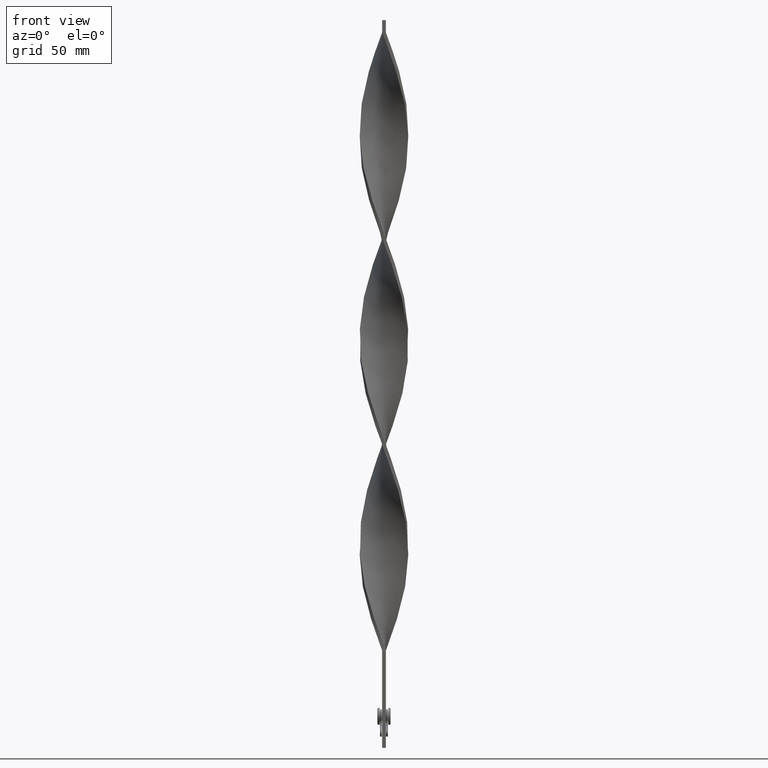
[diagram: clean part render]
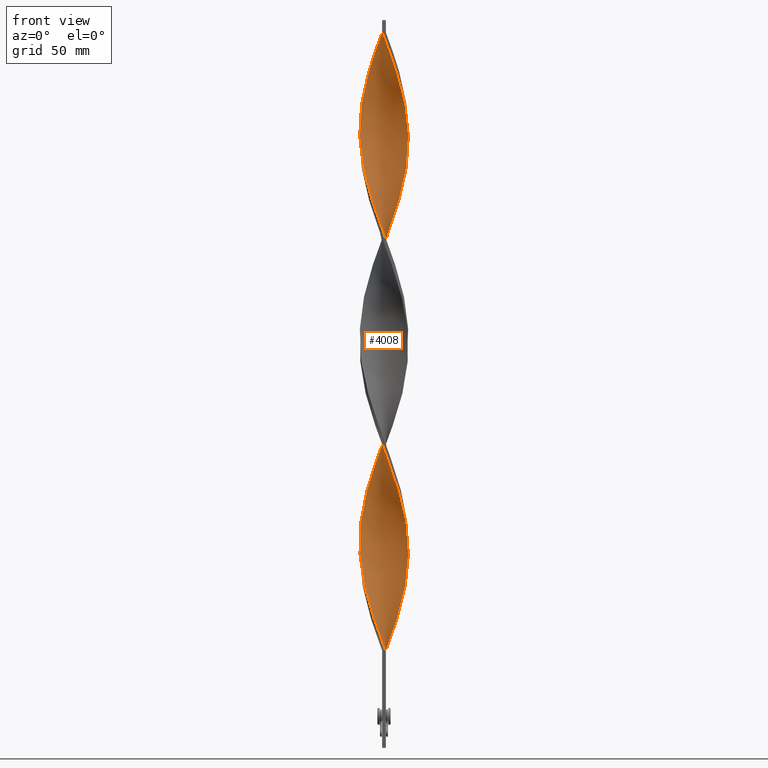
[diagram: same view with one face highlighted and labeled with its STEP entity id]
A machine part, front view. The second image highlights one B-rep face of the part: STEP entity #4008.
In plain terms, the highlighted face is a freeform B-spline surface patch.
Its self-contained STEP definition (entity closure, byte-faithful):
#14 = CARTESIAN_POINT ( 'NONE',  ( -8.979463439879781461, -4.533719918490541900, 241.8750000000000853 ) ) ;
#15 = CARTESIAN_POINT ( 'NONE',  ( -9.250558116688338828, -3.871650104254194424, 154.7500000000000000 ) ) ;
#17 = CARTESIAN_POINT ( 'NONE',  ( -1.610139721665725387, -9.929392229344637499, 216.3750000000000284 ) ) ;
#36 = CARTESIAN_POINT ( 'NONE',  ( 0.03701706824618700847, -10.05902628011846289, 122.8750000000000284 ) ) ;
#38 = CARTESIAN_POINT ( 'NONE',  ( -7.138980714781980375, 7.086630674828938048, 186.6250000000000284 ) ) ;
#40 = CARTESIAN_POINT ( 'NONE',  ( -8.159681294278257724, -5.882599862582950756, 237.6250000000000284 ) ) ;
#66 = CARTESIAN_POINT ( 'NONE',  ( -4.599684817117892344, 8.945852645255822466, 195.1250000000000568 ) ) ;
#67 = CARTESIAN_POINT ( 'NONE',  ( -4.533719918490538348, -8.979463439879779685, 135.6250000000000000 ) ) ;
#69 = CARTESIAN_POINT ( 'NONE',  ( 5.271089777143519228, 8.531008882968830420, 142.0000000000000284 ) ) ;
#73 = CARTESIAN_POINT ( 'NONE',  ( -9.578141394460869762, -3.073204743451141585, 76.12500000000001421 ) ) ;
#87 = CARTESIAN_POINT ( 'NONE',  ( -10.05902628011846289, -0.03701706824619197672, 165.3750000000000568 ) ) ;
#89 = CARTESIAN_POINT ( 'NONE',  ( 3.143615391390493841, -9.555263588120855189, 114.3750000000000142 ) ) ;
#91 = CARTESIAN_POINT ( 'NONE',  ( 8.569572367079016928, 5.208159890536745884, 154.7500000000000000 ) ) ;
#95 = CARTESIAN_POINT ( 'NONE',  ( -9.742327908732747233, 2.376877556528107061, 91.00000000000000000 ) ) ;
#109 = CARTESIAN_POINT ( 'NONE',  ( -8.531008882968828644, -5.271089777143522781, 150.5000000000000284 ) ) ;
#110 = CARTESIAN_POINT ( 'NONE',  ( 7.086630674828935383, 7.138980714781982151, 229.1250000000000284 ) ) ;
#112 = CARTESIAN_POINT ( 'NONE',  ( 3.871650104254189539, 9.250558116688340604, 137.7500000000000000 ) ) ;
#136 = CARTESIAN_POINT ( 'NONE',  ( 3.803462330970837968, 9.278802417170325612, 218.5000000000000284 ) ) ;
#137 = CARTESIAN_POINT ( 'NONE',  ( 8.945852645255822466, 4.599684817117895008, 237.6250000000000284 ) ) ;
#139 = CARTESIAN_POINT ( 'NONE',  ( -9.759557557171206099, -2.305110905848663627, 248.2500000000000284 ) ) ;
#158 = CARTESIAN_POINT ( 'NONE',  ( 5.882599862582948091, 8.159681294278261277, 224.8750000000000284 ) ) ;
#178 = CARTESIAN_POINT ( 'NONE',  ( 8.159681294278263053, -5.882599862582948980, 267.3750000000000000 ) ) ;
#179 = CARTESIAN_POINT ( 'NONE',  ( 9.994209254731551084, 0.8235783949559571937, 248.2500000000000284 ) ) ;
#183 = CARTESIAN_POINT ( 'NONE',  ( 9.555263588120853413, -3.143615391390493397, 178.1250000000000284 ) ) ;
#202 = CARTESIAN_POINT ( 'NONE',  ( 2.376877556528111057, -9.742327908732747233, 286.5000000000000568 ) ) ;
#208 = CARTESIAN_POINT ( 'NONE',  ( -3.143615391390491620, -9.555263588120855189, 220.6250000000000000 ) ) ;
#227 = CARTESIAN_POINT ( 'NONE',  ( 9.929392229344637499, -1.610139721665718726, 173.8750000000000568 ) ) ;
#228 = CARTESIAN_POINT ( 'NONE',  ( 6.484615268705940849, 7.649331004530119493, 57.00000000000000000 ) ) ;
#245 = CARTESIAN_POINT ( 'NONE',  ( -0.7499999999999992228, -3.333333333333333925, 295.0000000000000000 ) ) ;
#249 = CARTESIAN_POINT ( 'NONE',  ( 2.376877556528106616, 9.742327908732747233, 133.5000000000000000 ) ) ;
#277 = CARTESIAN_POINT ( 'NONE',  ( 2.305110905848664959, -9.759557557171202546, 205.7500000000000284 ) ) ;
#301 = CARTESIAN_POINT ( 'NONE',  ( -7.138980714781980375, -7.086630674828938048, 233.3750000000000000 ) ) ;
#324 = CARTESIAN_POINT ( 'NONE',  ( -8.531008882968830420, 5.271089777143519228, 269.5000000000000000 ) ) ;
#325 = CARTESIAN_POINT ( 'NONE',  ( 3.803462330970837968, 9.278802417170325612, 48.50000000000000000 ) ) ;
#327 = CARTESIAN_POINT ( 'NONE',  ( -5.942494737169148777, -8.116165120681841927, 59.12500000000001421 ) ) ;
#337 = CARTESIAN_POINT ( 'NONE',  ( 0.7499999999999987788, 10.00000000000000000, 40.00000000000000000 ) ) ;
#347 = CARTESIAN_POINT ( 'NONE',  ( 6.484615268705940849, 7.649331004530119493, 57.00000000000000000 ) ) ;
#348 = CARTESIAN_POINT ( 'NONE',  ( -9.940973719881537107, 1.537017068246185891, 169.6250000000000568 ) ) ;
#356 = LINE ( 'NONE', #2213, #3803 ) ;
#372 = CARTESIAN_POINT ( 'NONE',  ( 9.578141394460873315, -3.073204743451138476, 88.87500000000000000 ) ) ;
#373 = CARTESIAN_POINT ( 'NONE',  ( -3.143615391390499614, 9.555263588120851637, 199.3750000000000568 ) ) ;
#375 = CARTESIAN_POINT ( 'NONE',  ( 4.533719918490548118, -8.979463439879774356, 199.3750000000000568 ) ) ;
#396 = CARTESIAN_POINT ( 'NONE',  ( 10.05902628011846289, 0.03701706824618624520, 80.37500000000001421 ) ) ;
#398 = CARTESIAN_POINT ( 'NONE',  ( 2.376877556528111057, -9.742327908732747233, 116.5000000000000142 ) ) ;
#400 = CARTESIAN_POINT ( 'NONE',  ( 10.00000000000000000, 0.7500000000000029976, 167.5000000000000000 ) ) ;
#418 = CARTESIAN_POINT ( 'NONE',  ( 3.871650104254193536, -9.250558116688337051, 112.2500000000000142 ) ) ;
#419 = CARTESIAN_POINT ( 'NONE',  ( 0.8235783949559576378, -9.994209254731549308, 120.7500000000000000 ) ) ;
#422 = CARTESIAN_POINT ( 'NONE',  ( 0.8235783949559528638, 9.994209254731551084, 129.2500000000000000 ) ) ;
#426 = CARTESIAN_POINT ( 'NONE',  ( -1.610139721665725610, -9.929392229344635723, 46.37500000000000711 ) ) ;
#446 = CARTESIAN_POINT ( 'NONE',  ( -9.278802417170327388, 3.803462330970836636, 176.0000000000000284 ) ) ;
#447 = CARTESIAN_POINT ( 'NONE',  ( -9.555263588120851637, -3.143615391390499170, 156.8750000000000284 ) ) ;
#449 = CARTESIAN_POINT ( 'NONE',  ( 9.994209254731551084, -0.8235783949559521977, 171.7500000000000000 ) ) ;
#466 = CARTESIAN_POINT ( 'NONE',  ( 7.601397897755385991, 6.540737725975566796, 231.2500000000000000 ) ) ;
#467 = CARTESIAN_POINT ( 'NONE',  ( 3.871650104254193536, -9.250558116688337051, 282.2500000000000000 ) ) ;
#469 = CARTESIAN_POINT ( 'NONE',  ( -2.305110905848664071, 9.759557557171204323, 120.7500000000000000 ) ) ;
#472 = CARTESIAN_POINT ( 'NONE',  ( -9.994209254731551084, 0.8235783949559537520, 86.75000000000000000 ) ) ;
#486 = CARTESIAN_POINT ( 'NONE',  ( 1.537017068246183227, 9.940973719881537107, 212.1250000000000284 ) ) ;
#487 = CARTESIAN_POINT ( 'NONE',  ( 3.803462330970837968, 9.278802417170325612, 218.5000000000000284 ) ) ;
#489 = CARTESIAN_POINT ( 'NONE',  ( -10.00000000000000000, -0.7500000000000018874, 252.5000000000000000 ) ) ;
#513 = CARTESIAN_POINT ( 'NONE',  ( -3.871650104254195313, 9.250558116688338828, 197.2500000000000000 ) ) ;
#532 = CARTESIAN_POINT ( 'NONE',  ( 8.979463439879781461, -4.533719918490539236, 263.1250000000000568 ) ) ;
#537 = CARTESIAN_POINT ( 'NONE',  ( 8.569572367079016928, 5.208159890536745884, 154.7500000000000000 ) ) ;
#549 = CARTESIAN_POINT ( 'NONE',  ( 3.143615391390493841, -9.555263588120855189, 284.3750000000000568 ) ) ;
#554 = CARTESIAN_POINT ( 'NONE',  ( -0.8235783949559541961, -9.994209254731551084, 214.2500000000000284 ) ) ;
#574 = CARTESIAN_POINT ( 'NONE',  ( 10.05902628011846289, 0.03701706824618624520, 250.3750000000000853 ) ) ;
#580 = CARTESIAN_POINT ( 'NONE',  ( 9.994209254731551084, -0.8235783949559521977, 171.7500000000000000 ) ) ;
#600 = CARTESIAN_POINT ( 'NONE',  ( -8.116165120681840150, 5.942494737169147889, 101.6250000000000000 ) ) ;
#602 = CARTESIAN_POINT ( 'NONE',  ( 9.742327908732747233, 2.376877556528110169, 74.00000000000001421 ) ) ;
#621 = CARTESIAN_POINT ( 'NONE',  ( 0.03701706824618212349, 10.05902628011846289, 127.1250000000000142 ) ) ;
#648 = CARTESIAN_POINT ( 'NONE',  ( 7.649331004530119493, -6.484615268705939961, 99.50000000000000000 ) ) ;
#654 = CARTESIAN_POINT ( 'NONE',  ( -9.742327908732747233, 2.376877556528107061, 91.00000000000000000 ) ) ;
#675 = CARTESIAN_POINT ( 'NONE',  ( -5.208159890536744996, 8.569572367079016928, 282.2500000000000000 ) ) ;
#676 = CARTESIAN_POINT ( 'NONE',  ( 0.7499999999999987788, 10.00000000000000000, 40.00000000000000000 ) ) ;
#678 = CARTESIAN_POINT ( 'NONE',  ( -9.578141394460869762, -3.073204743451141585, 76.12500000000001421 ) ) ;
#696 = CARTESIAN_POINT ( 'NONE',  ( -5.942494737169148777, -8.116165120681840150, 229.1250000000000000 ) ) ;
#718 = CARTESIAN_POINT ( 'NONE',  ( 9.929392229344635723, 1.610139721665728274, 76.12500000000001421 ) ) ;
#719 = CARTESIAN_POINT ( 'NONE',  ( -6.484615268705939961, -7.649331004530119493, 142.0000000000000284 ) ) ;
#722 = CARTESIAN_POINT ( 'NONE',  ( 0.03701706824618212349, 10.05902628011846289, 127.1250000000000142 ) ) ;
#736 = CARTESIAN_POINT ( 'NONE',  ( -8.116165120681841927, 5.942494737169147889, 271.6250000000000000 ) ) ;
#745 = CARTESIAN_POINT ( 'NONE',  ( -3.803462330970841521, 9.278802417170325612, 286.5000000000000568 ) ) ;
#747 = CARTESIAN_POINT ( 'NONE',  ( 0.7499999999999987788, 10.00000000000000000, 210.0000000000000284 ) ) ;
#749 = CARTESIAN_POINT ( 'NONE',  ( -0.7500000000000024425, 10.00000000000000000, 125.0000000000000000 ) ) ;
#766 = CARTESIAN_POINT ( 'NONE',  ( 0.7499999999999987788, 10.00000000000000000, 210.0000000000000284 ) ) ;
#767 = CARTESIAN_POINT ( 'NONE',  ( 8.159681294278261277, -5.882599862582948091, 97.37500000000000000 ) ) ;
#769 = CARTESIAN_POINT ( 'NONE',  ( -7.138980714781980375, -7.086630674828937160, 233.3750000000000284 ) ) ;
#772 = CARTESIAN_POINT ( 'NONE',  ( -8.979463439879781461, -4.533719918490541900, 71.87500000000001421 ) ) ;
#790 = CARTESIAN_POINT ( 'NONE',  ( -5.882599862582947203, -8.159681294278263053, 139.8749999999999716 ) ) ;
#791 = CARTESIAN_POINT ( 'NONE',  ( -9.742327908732747233, -2.376877556528111057, 159.0000000000000000 ) ) ;
#793 = CARTESIAN_POINT ( 'NONE',  ( -5.882599862582950756, 8.159681294278257724, 110.1250000000000142 ) ) ;
#816 = CARTESIAN_POINT ( 'NONE',  ( -2.376877556528112834, 9.742327908732747233, 201.5000000000000000 ) ) ;
#819 = CARTESIAN_POINT ( 'NONE',  ( -10.00000000000000000, 0.7499999999999970024, 167.5000000000000000 ) ) ;
#821 = CARTESIAN_POINT ( 'NONE',  ( 9.555263588120853413, -3.143615391390493397, 178.1250000000000284 ) ) ;
#830 = CARTESIAN_POINT ( 'NONE',  ( -0.7500000000000024425, 10.00000000000000000, 295.0000000000000000 ) ) ;
#836 = ORIENTED_EDGE ( 'NONE', *, *, #2017, .T. ) ;
#837 = CARTESIAN_POINT ( 'NONE',  ( -9.759557557171206099, 2.305110905848659186, 171.7500000000000000 ) ) ;
#840 = CARTESIAN_POINT ( 'NONE',  ( -9.555263588120855189, 3.143615391390491176, 263.1250000000000568 ) ) ;
#857 = CARTESIAN_POINT ( 'NONE',  ( 9.250558116688337051, 3.871650104254193536, 239.7500000000000284 ) ) ;
#858 = CARTESIAN_POINT ( 'NONE',  ( 5.271089777143522781, -8.531008882968828644, 278.0000000000000000 ) ) ;
#886 = CARTESIAN_POINT ( 'NONE',  ( 6.484615268705940849, 7.649331004530119493, 227.0000000000000000 ) ) ;
#891 = CARTESIAN_POINT ( 'NONE',  ( 5.942494737169147889, 8.116165120681840150, 144.1249999999999716 ) ) ;
#906 = CARTESIAN_POINT ( 'NONE',  ( 8.159681294278261277, -5.882599862582948091, 267.3750000000000568 ) ) ;
#910 = CARTESIAN_POINT ( 'NONE',  ( -0.03701706824618330310, -10.05902628011846289, 212.1250000000000284 ) ) ;
#921 = VERTEX_POINT ( 'NONE', #830 ) ;
#929 = CARTESIAN_POINT ( 'NONE',  ( -6.484615268705943514, 7.649331004530117717, 108.0000000000000142 ) ) ;
#951 = CARTESIAN_POINT ( 'NONE',  ( 8.979463439879776132, 4.533719918490547229, 156.8750000000000000 ) ) ;
#974 = CARTESIAN_POINT ( 'NONE',  ( 8.116165120681840150, -5.942494737169151442, 186.6250000000000284 ) ) ;
#994 = CARTESIAN_POINT ( 'NONE',  ( 9.250558116688337051, 3.871650104254193536, 69.75000000000000000 ) ) ;
#997 = CARTESIAN_POINT ( 'NONE',  ( -5.271089777143520116, -8.531008882968830420, 57.00000000000000000 ) ) ;
#1011 = ORIENTED_EDGE ( 'NONE', *, *, #3600, .F. ) ;
#1022 = CARTESIAN_POINT ( 'NONE',  ( 3.803462330970837968, 9.278802417170325612, 48.50000000000000000 ) ) ;
#1027 = CARTESIAN_POINT ( 'NONE',  ( -2.376877556528107949, -9.742327908732747233, 48.50000000000000000 ) ) ;
#1045 =( BOUNDED_CURVE ( )  B_SPLINE_CURVE ( 2, ( #676, #2501, #1319, #2136, #325, #4621, #1775, #3902, #228, #1418, #4361, #2526, #3209, #3998, #1684, #3162, #602, #4408, #2232, #4438, #3283, #2603, #3381, #1906, #3739, #3639, #2652, #767, #3331, #1539, #4103, #1829, #1153, #3710, #2207, #89, #398, #1131, #419, #2999, #1878, #3022, #3358, #3687, #4078, #67, #1491, #1516, #719, #4462, #1851, #2629, #1098, #4484, #15, #447, #791, #2258, #1177, #4125, #819, #348, #1804, #4748, #4021, #3305, #4056, #1441, #2923, #38, #4385, #1075, #2549, #2182, #3666, #373, #1464, #2973, #2945, #2578, #747, #2327, #1244, #1948, #487, #3426, #4144, #158, #886, #110, #1560, #3044, #2719, #137, #1606, #3087, #2769, #1585, #179, #3065, #3111, #2355, #3472, #3807, #4509, #1273, #4574, #906, #2697, #1629, #2748, #2379, #858, #3830, #467, #2283, #202, #4551, #4216, #1995, #3489 ),
 .UNSPECIFIED., .F., .T. ) 
 B_SPLINE_CURVE_WITH_KNOTS ( ( 3, 2, 2, 2, 2, 2, 2, 2, 2, 2, 2, 2, 2, 2, 2, 2, 2, 2, 2, 2, 2, 2, 2, 2, 2, 2, 2, 2, 2, 2, 2, 2, 2, 2, 2, 2, 2, 2, 2, 2, 2, 2, 2, 2, 2, 2, 2, 2, 2, 2, 2, 2, 2, 2, 2, 2, 2, 2, 2, 2, 3 ),
 ( 0.000000000000000000, 0.01250000000000000243, 0.02500000000000000486, 0.03749999999999999861, 0.05000000000000000971, 0.06250000000000000000, 0.07499999999999999722, 0.08749999999999998057, 0.1000000000000000194, 0.1125000000000000028, 0.1250000000000000000, 0.1375000000000000111, 0.1499999999999999944, 0.1625000000000000056, 0.1749999999999999611, 0.1875000000000000000, 0.2000000000000000389, 0.2124999999999999944, 0.2250000000000000056, 0.2374999999999999611, 0.2500000000000000000, 0.2625000000000000111, 0.2750000000000000222, 0.2874999999999999778, 0.2999999999999999889, 0.3125000000000000000, 0.3250000000000000111, 0.3375000000000000777, 0.3499999999999999223, 0.3624999999999999889, 0.3750000000000000000, 0.3875000000000000111, 0.4000000000000000777, 0.4124999999999999223, 0.4249999999999999889, 0.4375000000000000000, 0.4500000000000000111, 0.4625000000000000777, 0.4749999999999999223, 0.4874999999999999889, 0.5000000000000000000, 0.5124999999999999556, 0.5250000000000000222, 0.5374999999999999778, 0.5500000000000000444, 0.5625000000000000000, 0.5749999999999999556, 0.5875000000000000222, 0.5999999999999999778, 0.6125000000000000444, 0.6250000000000000000, 0.6374999999999999556, 0.6500000000000000222, 0.6624999999999999778, 0.6750000000000001554, 0.6875000000000000000, 0.6999999999999998446, 0.7125000000000000222, 0.7249999999999999778, 0.7375000000000001554, 0.7500000000000000000 ),
 .UNSPECIFIED. ) 
 CURVE ( )  GEOMETRIC_REPRESENTATION_ITEM ( )  RATIONAL_B_SPLINE_CURVE ( ( 1.000000000000000000, 0.9969173337331279638, 1.000000000000000000, 0.9969173337331279638, 1.000000000000000000, 0.9969173337331279638, 1.000000000000000000, 0.9969173337331279638, 1.000000000000000000, 0.9969173337331279638, 1.000000000000000000, 0.9969173337331279638, 1.000000000000000000, 0.9969173337331279638, 1.000000000000000000, 0.9969173337331279638, 1.000000000000000000, 0.9969173337331279638, 1.000000000000000000, 0.9969173337331279638, 1.000000000000000000, 0.9969173337331279638, 1.000000000000000000, 0.9969173337331279638, 1.000000000000000000, 0.9969173337331279638, 1.000000000000000000, 0.9969173337331279638, 1.000000000000000000, 0.9969173337331279638, 1.000000000000000000, 0.9969173337331279638, 1.000000000000000000, 0.9969173337331279638, 1.000000000000000000, 0.9969173337331279638, 1.000000000000000000, 0.9969173337331279638, 1.000000000000000000, 0.9969173337331279638, 1.000000000000000000, 0.9969173337331279638, 1.000000000000000000, 0.9969173337331279638, 1.000000000000000000, 0.9969173337331279638, 1.000000000000000000, 0.9969173337331279638, 1.000000000000000000, 0.9969173337331279638, 1.000000000000000000, 0.9969173337331279638, 1.000000000000000000, 0.9969173337331279638, 1.000000000000000000, 0.9969173337331279638, 1.000000000000000000, 0.9969173337331279638, 1.000000000000000000, 0.9969173337331279638, 1.000000000000000000, 0.9969173337331279638, 1.000000000000000000, 0.9969173337331279638, 1.000000000000000000, 0.9969173337331279638, 1.000000000000000000, 0.9969173337331279638, 1.000000000000000000, 0.9969173337331279638, 1.000000000000000000, 0.9969173337331279638, 1.000000000000000000, 0.9969173337331279638, 1.000000000000000000, 0.9969173337331279638, 1.000000000000000000, 0.9969173337331279638, 1.000000000000000000, 0.9969173337331279638, 1.000000000000000000, 0.9969173337331279638, 1.000000000000000000, 0.9969173337331279638, 1.000000000000000000, 0.9969173337331279638, 1.000000000000000000, 0.9969173337331279638, 1.000000000000000000, 0.9969173337331279638, 1.000000000000000000, 0.9969173337331279638, 1.000000000000000000, 0.9969173337331279638, 1.000000000000000000, 0.9969173337331279638, 1.000000000000000000, 0.9969173337331279638, 1.000000000000000000, 0.9969173337331279638, 1.000000000000000000, 0.9969173337331279638, 1.000000000000000000, 0.9969173337331279638, 1.000000000000000000, 0.9969173337331279638, 1.000000000000000000, 0.9969173337331279638, 1.000000000000000000, 0.9969173337331279638, 1.000000000000000000, 0.9969173337331279638, 1.000000000000000000, 0.9969173337331279638, 1.000000000000000000, 0.9969173337331279638, 1.000000000000000000, 0.9969173337331279638, 1.000000000000000000, 0.9969173337331279638, 1.000000000000000000 ) ) 
 REPRESENTATION_ITEM ( '' )  );
#1048 = CARTESIAN_POINT ( 'NONE',  ( 8.979463439879781461, -4.533719918490539236, 93.12500000000001421 ) ) ;
#1063 = CARTESIAN_POINT ( 'NONE',  ( -8.945852645255826019, 4.599684817117892344, 267.3750000000000568 ) ) ;
#1072 = CARTESIAN_POINT ( 'NONE',  ( 8.531008882968828644, 5.271089777143521893, 65.50000000000000000 ) ) ;
#1074 =( BOUNDED_CURVE ( )  B_SPLINE_CURVE ( 2, ( #1734, #2426, #4674, #3641, #1027, #1349, #2822, #1369, #997, #327, #4722, #3904, #3949, #2844, #4306, #3976, #3285, #678, #2471, #4696, #2138, #1777, #4285, #4333, #654, #4750, #3232, #1443, #1393, #2925, #4388, #3360, #2263, #793, #2285, #2948, #4128, #4464, #469, #1467, #749, #722, #422, #4058, #1518, #4105, #112, #3762, #69, #1102, #1882, #3001, #2605, #4440, #91, #1831, #1156, #2975, #2209, #3689, #400, #2631, #449, #1495, #3741, #821, #2234, #4023, #1908, #3383, #2185, #1541, #3668, #3024, #1133, #375, #4486, #1179, #4080, #3307, #2656, #4410, #1929, #17, #3405, #2580, #1562, #3048, #1077, #1853, #2551, #769, #3334, #40, #3712, #3430, #3781, #1587, #139, #4511, #489, #1203, #2305, #2680, #4146, #840, #1950, #1063, #2170, #736, #3317, #2987, #2884, #1478, #2960, #4347, #2562, #1429, #3678, #4426, #2245 ),
 .UNSPECIFIED., .F., .T. ) 
 B_SPLINE_CURVE_WITH_KNOTS ( ( 3, 2, 2, 2, 2, 2, 2, 2, 2, 2, 2, 2, 2, 2, 2, 2, 2, 2, 2, 2, 2, 2, 2, 2, 2, 2, 2, 2, 2, 2, 2, 2, 2, 2, 2, 2, 2, 2, 2, 2, 2, 2, 2, 2, 2, 2, 2, 2, 2, 2, 2, 2, 2, 2, 2, 2, 2, 2, 2, 2, 3 ),
 ( 0.000000000000000000, 0.01250000000000000243, 0.02500000000000000486, 0.03749999999999999861, 0.05000000000000000971, 0.06250000000000000000, 0.07499999999999999722, 0.08749999999999998057, 0.1000000000000000194, 0.1125000000000000028, 0.1250000000000000000, 0.1375000000000000111, 0.1499999999999999944, 0.1625000000000000056, 0.1749999999999999611, 0.1875000000000000000, 0.2000000000000000389, 0.2124999999999999944, 0.2250000000000000056, 0.2374999999999999611, 0.2500000000000000000, 0.2625000000000000111, 0.2750000000000000222, 0.2874999999999999778, 0.2999999999999999889, 0.3125000000000000000, 0.3250000000000000111, 0.3375000000000000777, 0.3499999999999999223, 0.3624999999999999889, 0.3750000000000000000, 0.3875000000000000111, 0.4000000000000000777, 0.4124999999999999223, 0.4249999999999999889, 0.4375000000000000000, 0.4500000000000000111, 0.4625000000000000777, 0.4749999999999999223, 0.4874999999999999889, 0.5000000000000000000, 0.5124999999999999556, 0.5250000000000000222, 0.5374999999999999778, 0.5500000000000000444, 0.5625000000000000000, 0.5749999999999999556, 0.5875000000000000222, 0.5999999999999999778, 0.6125000000000000444, 0.6250000000000000000, 0.6374999999999999556, 0.6500000000000000222, 0.6624999999999999778, 0.6750000000000001554, 0.6875000000000000000, 0.6999999999999998446, 0.7125000000000000222, 0.7249999999999999778, 0.7375000000000001554, 0.7500000000000000000 ),
 .UNSPECIFIED. ) 
 CURVE ( )  GEOMETRIC_REPRESENTATION_ITEM ( )  RATIONAL_B_SPLINE_CURVE ( ( 1.000000000000000000, 0.9969173337331279638, 1.000000000000000000, 0.9969173337331279638, 1.000000000000000000, 0.9969173337331279638, 1.000000000000000000, 0.9969173337331279638, 1.000000000000000000, 0.9969173337331279638, 1.000000000000000000, 0.9969173337331279638, 1.000000000000000000, 0.9969173337331279638, 1.000000000000000000, 0.9969173337331279638, 1.000000000000000000, 0.9969173337331279638, 1.000000000000000000, 0.9969173337331279638, 1.000000000000000000, 0.9969173337331279638, 1.000000000000000000, 0.9969173337331279638, 1.000000000000000000, 0.9969173337331279638, 1.000000000000000000, 0.9969173337331279638, 1.000000000000000000, 0.9969173337331279638, 1.000000000000000000, 0.9969173337331279638, 1.000000000000000000, 0.9969173337331279638, 1.000000000000000000, 0.9969173337331279638, 1.000000000000000000, 0.9969173337331279638, 1.000000000000000000, 0.9969173337331279638, 1.000000000000000000, 0.9969173337331279638, 1.000000000000000000, 0.9969173337331279638, 1.000000000000000000, 0.9969173337331279638, 1.000000000000000000, 0.9969173337331279638, 1.000000000000000000, 0.9969173337331279638, 1.000000000000000000, 0.9969173337331279638, 1.000000000000000000, 0.9969173337331279638, 1.000000000000000000, 0.9969173337331279638, 1.000000000000000000, 0.9969173337331279638, 1.000000000000000000, 0.9969173337331279638, 1.000000000000000000, 0.9969173337331279638, 1.000000000000000000, 0.9969173337331279638, 1.000000000000000000, 0.9969173337331279638, 1.000000000000000000, 0.9969173337331279638, 1.000000000000000000, 0.9969173337331279638, 1.000000000000000000, 0.9969173337331279638, 1.000000000000000000, 0.9969173337331279638, 1.000000000000000000, 0.9969173337331279638, 1.000000000000000000, 0.9969173337331279638, 1.000000000000000000, 0.9969173337331279638, 1.000000000000000000, 0.9969173337331279638, 1.000000000000000000, 0.9969173337331279638, 1.000000000000000000, 0.9969173337331279638, 1.000000000000000000, 0.9969173337331279638, 1.000000000000000000, 0.9969173337331279638, 1.000000000000000000, 0.9969173337331279638, 1.000000000000000000, 0.9969173337331279638, 1.000000000000000000, 0.9969173337331279638, 1.000000000000000000, 0.9969173337331279638, 1.000000000000000000, 0.9969173337331279638, 1.000000000000000000, 0.9969173337331279638, 1.000000000000000000, 0.9969173337331279638, 1.000000000000000000, 0.9969173337331279638, 1.000000000000000000, 0.9969173337331279638, 1.000000000000000000, 0.9969173337331279638, 1.000000000000000000, 0.9969173337331279638, 1.000000000000000000, 0.9969173337331279638, 1.000000000000000000, 0.9969173337331279638, 1.000000000000000000, 0.9969173337331279638, 1.000000000000000000, 0.9969173337331279638, 1.000000000000000000 ) ) 
 REPRESENTATION_ITEM ( '' )  );
#1075 = CARTESIAN_POINT ( 'NONE',  ( -5.942494737169154995, 8.116165120681834821, 190.8750000000000568 ) ) ;
#1077 = CARTESIAN_POINT ( 'NONE',  ( -5.271089777143520116, -8.531008882968830420, 227.0000000000000000 ) ) ;
#1097 = CARTESIAN_POINT ( 'NONE',  ( -9.250558116688340604, 3.871650104254190428, 265.2500000000000000 ) ) ;
#1098 = CARTESIAN_POINT ( 'NONE',  ( -8.531008882968828644, -5.271089777143522781, 150.5000000000000284 ) ) ;
#1102 = CARTESIAN_POINT ( 'NONE',  ( 5.942494737169147889, 8.116165120681841927, 144.1250000000000000 ) ) ;
#1130 = CARTESIAN_POINT ( 'NONE',  ( 1.610139721665729162, -9.929392229344635723, 118.6250000000000284 ) ) ;
#1131 = CARTESIAN_POINT ( 'NONE',  ( 1.610139721665729162, -9.929392229344635723, 118.6250000000000284 ) ) ;
#1133 = CARTESIAN_POINT ( 'NONE',  ( 5.208159890536746772, -8.569572367079016928, 197.2500000000000000 ) ) ;
#1152 = CARTESIAN_POINT ( 'NONE',  ( -1.537017068246181895, -9.940973719881537107, 127.1250000000000142 ) ) ;
#1153 = CARTESIAN_POINT ( 'NONE',  ( 5.271089777143522781, -8.531008882968828644, 108.0000000000000142 ) ) ;
#1156 = CARTESIAN_POINT ( 'NONE',  ( 9.278802417170325612, 3.803462330970841965, 159.0000000000000000 ) ) ;
#1160 = CARTESIAN_POINT ( 'NONE',  ( -0.03701706824618330310, -10.05902628011846289, 42.12500000000001421 ) ) ;
#1175 = CARTESIAN_POINT ( 'NONE',  ( 3.143615391390493841, -9.555263588120855189, 114.3750000000000284 ) ) ;
#1177 = CARTESIAN_POINT ( 'NONE',  ( -9.994209254731549308, -0.8235783949559583039, 163.2500000000000000 ) ) ;
#1179 = CARTESIAN_POINT ( 'NONE',  ( 3.073204743451139365, -9.578141394460873315, 203.6250000000000568 ) ) ;
#1200 = CARTESIAN_POINT ( 'NONE',  ( -5.208159890536741443, -8.569572367079020481, 137.7500000000000000 ) ) ;
#1203 = CARTESIAN_POINT ( 'NONE',  ( -10.05902628011846289, 0.03701706824618266473, 254.6250000000000568 ) ) ;
#1219 = CARTESIAN_POINT ( 'NONE',  ( -5.271089777143524557, 8.531008882968828644, 193.0000000000000284 ) ) ;
#1226 = CARTESIAN_POINT ( 'NONE',  ( -5.271089777143520116, -8.531008882968830420, 57.00000000000000000 ) ) ;
#1243 = CARTESIAN_POINT ( 'NONE',  ( 0.03701706824618700847, -10.05902628011846289, 292.8750000000000568 ) ) ;
#1244 = CARTESIAN_POINT ( 'NONE',  ( 2.305110905848660963, 9.759557557171206099, 214.2500000000000284 ) ) ;
#1249 = CARTESIAN_POINT ( 'NONE',  ( -5.208159890536744996, 8.569572367079016928, 112.2500000000000142 ) ) ;
#1272 = CARTESIAN_POINT ( 'NONE',  ( 3.871650104254193536, -9.250558116688337051, 282.2500000000000000 ) ) ;
#1273 = CARTESIAN_POINT ( 'NONE',  ( 8.979463439879779685, -4.533719918490539236, 263.1250000000000568 ) ) ;
#1277 = CARTESIAN_POINT ( 'NONE',  ( 1.537017068246192331, -9.940973719881535331, 207.8750000000000568 ) ) ;
#1294 = CARTESIAN_POINT ( 'NONE',  ( 0.7500000000000012212, -10.00000000000000000, 40.00000000000000000 ) ) ;
#1298 = CARTESIAN_POINT ( 'NONE',  ( 9.940973719881535331, 1.537017068246191887, 165.3750000000000568 ) ) ;
#1318 = CARTESIAN_POINT ( 'NONE',  ( -0.7500000000000024425, 10.00000000000000000, 125.0000000000000000 ) ) ;
#1319 = CARTESIAN_POINT ( 'NONE',  ( 2.305110905848660963, 9.759557557171206099, 44.25000000000000000 ) ) ;
#1341 = CARTESIAN_POINT ( 'NONE',  ( -0.7499999999999976685, -10.00000000000000000, 295.0000000000000000 ) ) ;
#1345 = CARTESIAN_POINT ( 'NONE',  ( 9.759557557171204323, 2.305110905848664515, 163.2500000000000000 ) ) ;
#1349 = CARTESIAN_POINT ( 'NONE',  ( -3.143615391390492064, -9.555263588120855189, 50.62500000000000000 ) ) ;
#1366 = CARTESIAN_POINT ( 'NONE',  ( -3.073204743451142029, 9.578141394460869762, 288.6250000000000000 ) ) ;
#1369 = CARTESIAN_POINT ( 'NONE',  ( -4.599684817117892344, -8.945852645255826019, 54.87500000000000000 ) ) ;
#1390 = CARTESIAN_POINT ( 'NONE',  ( -4.533719918490542788, 8.979463439879781461, 284.3750000000000568 ) ) ;
#1393 = CARTESIAN_POINT ( 'NONE',  ( -8.531008882968830420, 5.271089777143519228, 99.50000000000000000 ) ) ;
#1416 = CARTESIAN_POINT ( 'NONE',  ( -8.945852645255824243, 4.599684817117892344, 267.3750000000000000 ) ) ;
#1418 = CARTESIAN_POINT ( 'NONE',  ( 7.086630674828935383, 7.138980714781982151, 59.12500000000001421 ) ) ;
#1429 = CARTESIAN_POINT ( 'NONE',  ( -3.073204743451142029, 9.578141394460869762, 288.6250000000000000 ) ) ;
#1439 = CARTESIAN_POINT ( 'NONE',  ( -9.742327908732747233, 2.376877556528107061, 261.0000000000000000 ) ) ;
#1441 = CARTESIAN_POINT ( 'NONE',  ( -8.159681294278263053, 5.882599862582942762, 182.3750000000000284 ) ) ;
#1443 = CARTESIAN_POINT ( 'NONE',  ( -8.945852645255826019, 4.599684817117892344, 97.37500000000000000 ) ) ;
#1463 = CARTESIAN_POINT ( 'NONE',  ( -10.05902628011846289, 0.03701706824618266473, 254.6250000000000568 ) ) ;
#1464 = CARTESIAN_POINT ( 'NONE',  ( -2.376877556528112834, 9.742327908732747233, 201.5000000000000000 ) ) ;
#1467 = CARTESIAN_POINT ( 'NONE',  ( -1.537017068246187002, 9.940973719881537107, 122.8750000000000284 ) ) ;
#1478 = CARTESIAN_POINT ( 'NONE',  ( -5.882599862582950756, 8.159681294278257724, 280.1250000000000000 ) ) ;
#1490 = CARTESIAN_POINT ( 'NONE',  ( -9.742327908732747233, -2.376877556528111057, 159.0000000000000000 ) ) ;
#1491 = CARTESIAN_POINT ( 'NONE',  ( -5.208159890536741443, -8.569572367079020481, 137.7500000000000000 ) ) ;
#1495 = CARTESIAN_POINT ( 'NONE',  ( 9.929392229344639276, -1.610139721665718726, 173.8750000000000568 ) ) ;
#1514 = CARTESIAN_POINT ( 'NONE',  ( 5.271089777143522781, -8.531008882968828644, 108.0000000000000142 ) ) ;
#1516 = CARTESIAN_POINT ( 'NONE',  ( -5.882599862582947203, -8.159681294278261277, 139.8750000000000000 ) ) ;
#1518 = CARTESIAN_POINT ( 'NONE',  ( 2.376877556528106616, 9.742327908732747233, 133.5000000000000000 ) ) ;
#1522 = CARTESIAN_POINT ( 'NONE',  ( -9.940973719881537107, -1.537017068246186113, 80.37500000000001421 ) ) ;
#1538 = CARTESIAN_POINT ( 'NONE',  ( -3.143615391390499170, 9.555263588120851637, 199.3750000000000568 ) ) ;
#1539 = CARTESIAN_POINT ( 'NONE',  ( 7.138980714781982151, -7.086630674828934495, 101.6250000000000000 ) ) ;
#1541 = CARTESIAN_POINT ( 'NONE',  ( 7.086630674828941601, -7.138980714781975045, 190.8750000000000568 ) ) ;
#1559 = CARTESIAN_POINT ( 'NONE',  ( -7.649331004530121270, 6.484615268705938185, 184.5000000000000284 ) ) ;
#1560 = CARTESIAN_POINT ( 'NONE',  ( 7.601397897755385991, 6.540737725975566796, 231.2500000000000000 ) ) ;
#1562 = CARTESIAN_POINT ( 'NONE',  ( -3.871650104254190428, -9.250558116688340604, 222.7500000000000284 ) ) ;
#1584 = CARTESIAN_POINT ( 'NONE',  ( 8.116165120681838374, 5.942494737169150554, 233.3750000000000000 ) ) ;
#1585 = CARTESIAN_POINT ( 'NONE',  ( 9.929392229344635723, 1.610139721665728274, 246.1250000000000284 ) ) ;
#1587 = CARTESIAN_POINT ( 'NONE',  ( -9.578141394460869762, -3.073204743451141585, 246.1250000000000284 ) ) ;
#1605 = CARTESIAN_POINT ( 'NONE',  ( 9.940973719881537107, -1.537017068246182561, 254.6250000000000568 ) ) ;
#1606 = CARTESIAN_POINT ( 'NONE',  ( 9.250558116688337051, 3.871650104254193536, 239.7500000000000284 ) ) ;
#1611 = CARTESIAN_POINT ( 'NONE',  ( -0.8235783949559541961, -9.994209254731551084, 44.25000000000000000 ) ) ;
#1627 = CARTESIAN_POINT ( 'NONE',  ( 6.540737725975566796, -7.601397897755384214, 273.7500000000000000 ) ) ;
#1629 = CARTESIAN_POINT ( 'NONE',  ( 7.138980714781982151, -7.086630674828934495, 271.6250000000000000 ) ) ;
#1633 = CARTESIAN_POINT ( 'NONE',  ( 6.484615268705945290, -7.649331004530117717, 193.0000000000000284 ) ) ;
#1660 = CARTESIAN_POINT ( 'NONE',  ( -8.945852645255824243, 4.599684817117892344, 97.37500000000000000 ) ) ;
#1683 = CARTESIAN_POINT ( 'NONE',  ( 8.945852645255826019, -4.599684817117886126, 182.3750000000000284 ) ) ;
#1684 = CARTESIAN_POINT ( 'NONE',  ( 9.250558116688337051, 3.871650104254193536, 69.75000000000000000 ) ) ;
#1700 = CARTESIAN_POINT ( 'NONE',  ( 9.278802417170327388, -3.803462330970837524, 261.0000000000000000 ) ) ;
#1702 = CARTESIAN_POINT ( 'NONE',  ( 4.599684817117890567, 8.945852645255824243, 139.8749999999999716 ) ) ;
#1731 = CARTESIAN_POINT ( 'NONE',  ( -3.073204743451142029, 9.578141394460869762, 118.6250000000000284 ) ) ;
#1734 = CARTESIAN_POINT ( 'NONE',  ( 0.7500000000000012212, -10.00000000000000000, 40.00000000000000000 ) ) ;
#1751 = CARTESIAN_POINT ( 'NONE',  ( 5.942494737169152330, -8.116165120681838374, 105.8750000000000142 ) ) ;
#1771 = ORIENTED_EDGE ( 'NONE', *, *, #4288, .F. ) ;
#1774 = CARTESIAN_POINT ( 'NONE',  ( 2.305110905848660963, 9.759557557171206099, 44.25000000000000000 ) ) ;
#1775 = CARTESIAN_POINT ( 'NONE',  ( 5.208159890536742331, 8.569572367079020481, 52.75000000000000711 ) ) ;
#1777 = CARTESIAN_POINT ( 'NONE',  ( -10.05902628011846289, 0.03701706824618266473, 84.62500000000001421 ) ) ;
#1802 = CARTESIAN_POINT ( 'NONE',  ( -9.759557557171206099, -2.305110905848663627, 248.2500000000000284 ) ) ;
#1804 = CARTESIAN_POINT ( 'NONE',  ( -9.759557557171206099, 2.305110905848659186, 171.7500000000000000 ) ) ;
#1828 = CARTESIAN_POINT ( 'NONE',  ( 9.278802417170327388, -3.803462330970837524, 91.00000000000000000 ) ) ;
#1829 = CARTESIAN_POINT ( 'NONE',  ( 5.942494737169152330, -8.116165120681838374, 105.8750000000000142 ) ) ;
#1831 = CARTESIAN_POINT ( 'NONE',  ( 8.979463439879774356, 4.533719918490547229, 156.8750000000000284 ) ) ;
#1850 = CARTESIAN_POINT ( 'NONE',  ( 8.159681294278263053, -5.882599862582948980, 97.37500000000000000 ) ) ;
#1851 = CARTESIAN_POINT ( 'NONE',  ( -7.601397897755384214, -6.540737725975567685, 146.2500000000000284 ) ) ;
#1853 = CARTESIAN_POINT ( 'NONE',  ( -5.942494737169148777, -8.116165120681841927, 229.1250000000000284 ) ) ;
#1876 = CARTESIAN_POINT ( 'NONE',  ( -8.116165120681834821, -5.942494737169154995, 148.3750000000000000 ) ) ;
#1878 = CARTESIAN_POINT ( 'NONE',  ( -0.7499999999999976685, -10.00000000000000000, 125.0000000000000000 ) ) ;
#1882 = CARTESIAN_POINT ( 'NONE',  ( 6.540737725975563244, 7.601397897755388655, 146.2500000000000284 ) ) ;
#1905 = CARTESIAN_POINT ( 'NONE',  ( -7.601397897755384214, -6.540737725975567685, 146.2500000000000284 ) ) ;
#1906 = CARTESIAN_POINT ( 'NONE',  ( 9.578141394460873315, -3.073204743451138476, 88.87500000000001421 ) ) ;
#1908 = CARTESIAN_POINT ( 'NONE',  ( 8.531008882968832197, -5.271089777143517452, 184.5000000000000284 ) ) ;
#1912 = CARTESIAN_POINT ( 'NONE',  ( -9.929392229344635723, 1.610139721665724499, 88.87500000000000000 ) ) ;
#1925 = CARTESIAN_POINT ( 'NONE',  ( 2.376877556528111057, -9.742327908732747233, 116.5000000000000142 ) ) ;
#1929 = CARTESIAN_POINT ( 'NONE',  ( -0.8235783949559541961, -9.994209254731551084, 214.2500000000000284 ) ) ;
#1932 = CARTESIAN_POINT ( 'NONE',  ( -3.143615391390491620, -9.555263588120855189, 50.62500000000000711 ) ) ;
#1947 = CARTESIAN_POINT ( 'NONE',  ( -9.578141394460875091, 3.073204743451132259, 173.8750000000000568 ) ) ;
#1948 = CARTESIAN_POINT ( 'NONE',  ( 3.073204743451138921, 9.578141394460871538, 216.3750000000000284 ) ) ;
#1950 = CARTESIAN_POINT ( 'NONE',  ( -9.250558116688340604, 3.871650104254190428, 265.2500000000000000 ) ) ;
#1955 = FACE_OUTER_BOUND ( 'NONE', #2921, .T. ) ;
#1976 = CARTESIAN_POINT ( 'NONE',  ( 7.649331004530119493, -6.484615268705939961, 269.5000000000000000 ) ) ;
#1994 = CARTESIAN_POINT ( 'NONE',  ( 9.742327908732747233, 2.376877556528110169, 244.0000000000000284 ) ) ;
#1995 = CARTESIAN_POINT ( 'NONE',  ( 0.03701706824618700153, -10.05902628011846289, 292.8750000000000568 ) ) ;
#2000 = CARTESIAN_POINT ( 'NONE',  ( 1.610139721665724055, 9.929392229344635723, 131.3750000000000000 ) ) ;
#2016 = CARTESIAN_POINT ( 'NONE',  ( -1.610139721665725610, -9.929392229344635723, 216.3750000000000284 ) ) ;
#2017 = EDGE_CURVE ( 'NONE', #3660, #3848, #1045, .T. ) ;
#2036 = CARTESIAN_POINT ( 'NONE',  ( 9.759557557171206099, -2.305110905848660519, 256.7500000000000568 ) ) ;
#2040 = CARTESIAN_POINT ( 'NONE',  ( 6.540737725975563244, 7.601397897755388655, 146.2500000000000284 ) ) ;
#2060 = CARTESIAN_POINT ( 'NONE',  ( -9.555263588120855189, 3.143615391390491176, 93.12500000000001421 ) ) ;
#2076 = VERTEX_POINT ( 'NONE', #1294 ) ;
#2082 = CARTESIAN_POINT ( 'NONE',  ( 8.159681294278261277, 5.882599862582948091, 152.6250000000000000 ) ) ;
#2112 = CARTESIAN_POINT ( 'NONE',  ( -1.537017068246186779, 9.940973719881537107, 292.8750000000000568 ) ) ;
#2134 = CARTESIAN_POINT ( 'NONE',  ( -5.882599862582951644, 8.159681294278259500, 280.1250000000000000 ) ) ;
#2136 = CARTESIAN_POINT ( 'NONE',  ( 3.073204743451138921, 9.578141394460871538, 46.37500000000000711 ) ) ;
#2138 = CARTESIAN_POINT ( 'NONE',  ( -10.00000000000000000, -0.7500000000000018874, 82.50000000000000000 ) ) ;
#2157 = CARTESIAN_POINT ( 'NONE',  ( -9.994209254731551084, 0.8235783949559537520, 256.7500000000000568 ) ) ;
#2170 = CARTESIAN_POINT ( 'NONE',  ( -8.531008882968830420, 5.271089777143519228, 269.5000000000000000 ) ) ;
#2180 = CARTESIAN_POINT ( 'NONE',  ( 9.994209254731551084, 0.8235783949559571937, 78.25000000000001421 ) ) ;
#2182 = CARTESIAN_POINT ( 'NONE',  ( -4.599684817117892344, 8.945852645255824243, 195.1250000000000568 ) ) ;
#2185 = CARTESIAN_POINT ( 'NONE',  ( 7.601397897755388655, -6.540737725975562356, 188.7500000000000284 ) ) ;
#2190 = DIRECTION ( 'NONE',  ( 1.192622389734054877E-16, -1.000000000000000000, 0.000000000000000000 ) ) ;
#2206 = CARTESIAN_POINT ( 'NONE',  ( 10.00000000000000000, -0.7499999999999982236, 82.50000000000000000 ) ) ;
#2207 = CARTESIAN_POINT ( 'NONE',  ( 3.871650104254193536, -9.250558116688337051, 112.2500000000000142 ) ) ;
#2209 = CARTESIAN_POINT ( 'NONE',  ( 9.759557557171204323, 2.305110905848664515, 163.2500000000000000 ) ) ;
#2213 = CARTESIAN_POINT ( 'NONE',  ( 0.7499999999999987788, 10.00000000000000000, 40.00000000000000000 ) ) ;
#2230 = CARTESIAN_POINT ( 'NONE',  ( 5.208159890536742331, 8.569572367079020481, 222.7500000000000284 ) ) ;
#2232 = CARTESIAN_POINT ( 'NONE',  ( 9.994209254731551084, 0.8235783949559571937, 78.25000000000001421 ) ) ;
#2234 = CARTESIAN_POINT ( 'NONE',  ( 9.250558116688340604, -3.871650104254189539, 180.2500000000000284 ) ) ;
#2238 = CARTESIAN_POINT ( 'NONE',  ( -7.138980714781980375, -7.086630674828938048, 63.37500000000000000 ) ) ;
#2245 = CARTESIAN_POINT ( 'NONE',  ( -0.7500000000000024425, 10.00000000000000000, 295.0000000000000000 ) ) ;
#2248 =( BOUNDED_SURFACE ( )  B_SPLINE_SURFACE ( 1, 2, ( 
 ( #2634, #1160, #1611, #426, #3072, #1932, #4535, #3028, #1226, #3094, #4107, #2238, #4556, #4084, #3715, #772, #3363, #73, #4489, #1522, #3005, #2266, #472, #1912, #95, #2060, #4646, #1660, #3901, #600, #2446, #2790, #929, #4203, #1249, #3924, #4580, #1731, #2772, #3520, #1318, #621, #2402, #2000, #249, #4258, #2361, #1702, #3875, #891, #2040, #3836, #3117, #2082, #537, #951, #3161, #4620, #1345, #1298, #3476, #2423, #580, #227, #2816, #183, #4282, #1683, #3207, #974, #3543, #3183, #1633, #2384, #2752, #3568, #2728, #3855, #277, #1277, #4220, #910, #554, #2016, #3494, #208, #3141, #4603, #4239, #696, #3282, #301, #3638, #4407, #2943, #14, #4671, #3686, #1802, #4359, #3617, #1463, #2157, #4747, #1439, #3253, #1097, #1416, #324, #4693, #2576, #4328, #3229, #2134, #675, #1390, #745, #1366, #3303, #2112, #4717 ),
 ( #2841, #2922, #1774, #4020, #1022, #3944, #2500, #2900, #347, #4384, #4055, #4303, #1072, #2548, #994, #3996, #2867, #718, #2180, #396, #2206, #3665, #3973, #372, #1828, #1048, #2525, #1850, #648, #2468, #3594, #1751, #1514, #4461, #418, #1175, #1925, #1130, #2602, #36, #3709, #1152, #2628, #4124, #3806, #4101, #1200, #790, #4143, #3356, #1905, #1876, #109, #2998, #3021, #3736, #1490, #3402, #4508, #87, #4077, #2301, #837, #1947, #446, #2675, #3778, #4528, #1559, #4483, #2972, #3330, #1219, #66, #513, #1538, #816, #3043, #2696, #2651, #766, #486, #3425, #4436, #136, #2282, #2230, #3759, #2257, #3380, #466, #1584, #3064, #4165, #857, #2325, #1994, #4639, #2747, #574, #2768, #1605, #2036, #3471, #1700, #532, #3178, #178, #1976, #3109, #1627, #2786, #4573, #4234, #1272, #549, #3156, #4254, #3829, #1243, #1341 ) ),
 .UNSPECIFIED., .F., .F., .F. ) 
 B_SPLINE_SURFACE_WITH_KNOTS ( ( 2, 2 ),
 ( 3, 2, 2, 2, 2, 2, 2, 2, 2, 2, 2, 2, 2, 2, 2, 2, 2, 2, 2, 2, 2, 2, 2, 2, 2, 2, 2, 2, 2, 2, 2, 2, 2, 2, 2, 2, 2, 2, 2, 2, 2, 2, 2, 2, 2, 2, 2, 2, 2, 2, 2, 2, 2, 2, 2, 2, 2, 2, 2, 2, 3 ),
 ( 0.000000000000000000, 1.000000000000000000 ),
 ( 0.000000000000000000, 0.01250000000000000069, 0.02500000000000000139, 0.03749999999999999861, 0.05000000000000000278, 0.06250000000000000000, 0.07499999999999999722, 0.08749999999999999445, 0.1000000000000000056, 0.1125000000000000028, 0.1250000000000000000, 0.1375000000000000111, 0.1499999999999999944, 0.1625000000000000056, 0.1749999999999999889, 0.1875000000000000000, 0.2000000000000000111, 0.2124999999999999944, 0.2250000000000000056, 0.2374999999999999889, 0.2500000000000000000, 0.2625000000000000111, 0.2750000000000000222, 0.2874999999999999778, 0.2999999999999999889, 0.3125000000000000000, 0.3250000000000000111, 0.3375000000000000222, 0.3499999999999999778, 0.3624999999999999889, 0.3750000000000000000, 0.3875000000000000111, 0.4000000000000000222, 0.4124999999999999778, 0.4249999999999999889, 0.4375000000000000000, 0.4500000000000000111, 0.4625000000000000222, 0.4749999999999999778, 0.4874999999999999889, 0.5000000000000000000, 0.5124999999999999556, 0.5250000000000000222, 0.5374999999999999778, 0.5500000000000000444, 0.5625000000000000000, 0.5749999999999999556, 0.5875000000000000222, 0.5999999999999999778, 0.6125000000000000444, 0.6250000000000000000, 0.6374999999999999556, 0.6500000000000000222, 0.6624999999999999778, 0.6750000000000000444, 0.6875000000000000000, 0.6999999999999999556, 0.7125000000000000222, 0.7249999999999999778, 0.7375000000000000444, 0.7500000000000000000 ),
 .UNSPECIFIED. ) 
 GEOMETRIC_REPRESENTATION_ITEM ( )  RATIONAL_B_SPLINE_SURFACE ( (
 ( 1.000000000000000000, 0.9969173337331279638, 1.000000000000000000, 0.9969173337331279638, 1.000000000000000000, 0.9969173337331279638, 1.000000000000000000, 0.9969173337331279638, 1.000000000000000000, 0.9969173337331279638, 1.000000000000000000, 0.9969173337331279638, 1.000000000000000000, 0.9969173337331279638, 1.000000000000000000, 0.9969173337331279638, 1.000000000000000000, 0.9969173337331279638, 1.000000000000000000, 0.9969173337331279638, 1.000000000000000000, 0.9969173337331279638, 1.000000000000000000, 0.9969173337331279638, 1.000000000000000000, 0.9969173337331279638, 1.000000000000000000, 0.9969173337331279638, 1.000000000000000000, 0.9969173337331279638, 1.000000000000000000, 0.9969173337331279638, 1.000000000000000000, 0.9969173337331279638, 1.000000000000000000, 0.9969173337331279638, 1.000000000000000000, 0.9969173337331279638, 1.000000000000000000, 0.9969173337331279638, 1.000000000000000000, 0.9969173337331279638, 1.000000000000000000, 0.9969173337331279638, 1.000000000000000000, 0.9969173337331279638, 1.000000000000000000, 0.9969173337331279638, 1.000000000000000000, 0.9969173337331279638, 1.000000000000000000, 0.9969173337331279638, 1.000000000000000000, 0.9969173337331279638, 1.000000000000000000, 0.9969173337331279638, 1.000000000000000000, 0.9969173337331279638, 1.000000000000000000, 0.9969173337331279638, 1.000000000000000000, 0.9969173337331279638, 1.000000000000000000, 0.9969173337331279638, 1.000000000000000000, 0.9969173337331279638, 1.000000000000000000, 0.9969173337331279638, 1.000000000000000000, 0.9969173337331279638, 1.000000000000000000, 0.9969173337331279638, 1.000000000000000000, 0.9969173337331279638, 1.000000000000000000, 0.9969173337331279638, 1.000000000000000000, 0.9969173337331279638, 1.000000000000000000, 0.9969173337331279638, 1.000000000000000000, 0.9969173337331279638, 1.000000000000000000, 0.9969173337331279638, 1.000000000000000000, 0.9969173337331279638, 1.000000000000000000, 0.9969173337331279638, 1.000000000000000000, 0.9969173337331279638, 1.000000000000000000, 0.9969173337331279638, 1.000000000000000000, 0.9969173337331279638, 1.000000000000000000, 0.9969173337331279638, 1.000000000000000000, 0.9969173337331279638, 1.000000000000000000, 0.9969173337331279638, 1.000000000000000000, 0.9969173337331279638, 1.000000000000000000, 0.9969173337331279638, 1.000000000000000000, 0.9969173337331279638, 1.000000000000000000, 0.9969173337331279638, 1.000000000000000000, 0.9969173337331279638, 1.000000000000000000, 0.9969173337331279638, 1.000000000000000000, 0.9969173337331279638, 1.000000000000000000, 0.9969173337331279638, 1.000000000000000000, 0.9969173337331279638, 1.000000000000000000, 0.9969173337331279638, 1.000000000000000000),
 ( 1.000000000000000000, 0.9969173337331279638, 1.000000000000000000, 0.9969173337331279638, 1.000000000000000000, 0.9969173337331279638, 1.000000000000000000, 0.9969173337331279638, 1.000000000000000000, 0.9969173337331279638, 1.000000000000000000, 0.9969173337331279638, 1.000000000000000000, 0.9969173337331279638, 1.000000000000000000, 0.9969173337331279638, 1.000000000000000000, 0.9969173337331279638, 1.000000000000000000, 0.9969173337331279638, 1.000000000000000000, 0.9969173337331279638, 1.000000000000000000, 0.9969173337331279638, 1.000000000000000000, 0.9969173337331279638, 1.000000000000000000, 0.9969173337331279638, 1.000000000000000000, 0.9969173337331279638, 1.000000000000000000, 0.9969173337331279638, 1.000000000000000000, 0.9969173337331279638, 1.000000000000000000, 0.9969173337331279638, 1.000000000000000000, 0.9969173337331279638, 1.000000000000000000, 0.9969173337331279638, 1.000000000000000000, 0.9969173337331279638, 1.000000000000000000, 0.9969173337331279638, 1.000000000000000000, 0.9969173337331279638, 1.000000000000000000, 0.9969173337331279638, 1.000000000000000000, 0.9969173337331279638, 1.000000000000000000, 0.9969173337331279638, 1.000000000000000000, 0.9969173337331279638, 1.000000000000000000, 0.9969173337331279638, 1.000000000000000000, 0.9969173337331279638, 1.000000000000000000, 0.9969173337331279638, 1.000000000000000000, 0.9969173337331279638, 1.000000000000000000, 0.9969173337331279638, 1.000000000000000000, 0.9969173337331279638, 1.000000000000000000, 0.9969173337331279638, 1.000000000000000000, 0.9969173337331279638, 1.000000000000000000, 0.9969173337331279638, 1.000000000000000000, 0.9969173337331279638, 1.000000000000000000, 0.9969173337331279638, 1.000000000000000000, 0.9969173337331279638, 1.000000000000000000, 0.9969173337331279638, 1.000000000000000000, 0.9969173337331279638, 1.000000000000000000, 0.9969173337331279638, 1.000000000000000000, 0.9969173337331279638, 1.000000000000000000, 0.9969173337331279638, 1.000000000000000000, 0.9969173337331279638, 1.000000000000000000, 0.9969173337331279638, 1.000000000000000000, 0.9969173337331279638, 1.000000000000000000, 0.9969173337331279638, 1.000000000000000000, 0.9969173337331279638, 1.000000000000000000, 0.9969173337331279638, 1.000000000000000000, 0.9969173337331279638, 1.000000000000000000, 0.9969173337331279638, 1.000000000000000000, 0.9969173337331279638, 1.000000000000000000, 0.9969173337331279638, 1.000000000000000000, 0.9969173337331279638, 1.000000000000000000, 0.9969173337331279638, 1.000000000000000000, 0.9969173337331279638, 1.000000000000000000, 0.9969173337331279638, 1.000000000000000000, 0.9969173337331279638, 1.000000000000000000, 0.9969173337331279638, 1.000000000000000000) ) ) 
 REPRESENTATION_ITEM ( '' )  SURFACE ( )  );
#2257 = CARTESIAN_POINT ( 'NONE',  ( 6.484615268705940849, 7.649331004530119493, 227.0000000000000000 ) ) ;
#2258 = CARTESIAN_POINT ( 'NONE',  ( -9.929392229344637499, -1.610139721665724943, 161.1250000000000284 ) ) ;
#2263 = CARTESIAN_POINT ( 'NONE',  ( -6.484615268705943514, 7.649331004530117717, 108.0000000000000142 ) ) ;
#2266 = CARTESIAN_POINT ( 'NONE',  ( -10.05902628011846289, 0.03701706824618266473, 84.62500000000001421 ) ) ;
#2282 = CARTESIAN_POINT ( 'NONE',  ( 4.533719918490539236, 8.979463439879781461, 220.6250000000000000 ) ) ;
#2283 = CARTESIAN_POINT ( 'NONE',  ( 3.143615391390493841, -9.555263588120855189, 284.3750000000000568 ) ) ;
#2285 = CARTESIAN_POINT ( 'NONE',  ( -5.208159890536744996, 8.569572367079016928, 112.2500000000000142 ) ) ;
#2301 = CARTESIAN_POINT ( 'NONE',  ( -9.940973719881537107, 1.537017068246185891, 169.6250000000000568 ) ) ;
#2305 = CARTESIAN_POINT ( 'NONE',  ( -9.994209254731551084, 0.8235783949559537520, 256.7500000000000568 ) ) ;
#2325 = CARTESIAN_POINT ( 'NONE',  ( 9.555263588120855189, 3.143615391390493397, 241.8750000000000853 ) ) ;
#2327 = CARTESIAN_POINT ( 'NONE',  ( 1.537017068246183449, 9.940973719881537107, 212.1250000000000284 ) ) ;
#2355 = CARTESIAN_POINT ( 'NONE',  ( 9.940973719881537107, -1.537017068246182783, 254.6250000000000568 ) ) ;
#2361 = CARTESIAN_POINT ( 'NONE',  ( 3.871650104254189539, 9.250558116688340604, 137.7500000000000000 ) ) ;
#2379 = CARTESIAN_POINT ( 'NONE',  ( 5.942494737169152330, -8.116165120681838374, 275.8750000000000568 ) ) ;
#2384 = CARTESIAN_POINT ( 'NONE',  ( 5.882599862582948980, -8.159681294278261277, 195.1250000000000568 ) ) ;
#2402 = CARTESIAN_POINT ( 'NONE',  ( 0.8235783949559528638, 9.994209254731551084, 129.2500000000000000 ) ) ;
#2423 = CARTESIAN_POINT ( 'NONE',  ( 10.05902628011846289, -0.03701706824618602315, 169.6250000000000568 ) ) ;
#2426 = CARTESIAN_POINT ( 'NONE',  ( -0.03701706824618331004, -10.05902628011846289, 42.12500000000000711 ) ) ;
#2446 = CARTESIAN_POINT ( 'NONE',  ( -7.601397897755387767, 6.540737725975563244, 103.7500000000000142 ) ) ;
#2468 = CARTESIAN_POINT ( 'NONE',  ( 7.138980714781982151, -7.086630674828935383, 101.6250000000000000 ) ) ;
#2471 = CARTESIAN_POINT ( 'NONE',  ( -9.759557557171206099, -2.305110905848663627, 78.25000000000001421 ) ) ;
#2500 = CARTESIAN_POINT ( 'NONE',  ( 5.208159890536742331, 8.569572367079020481, 52.75000000000000711 ) ) ;
#2501 = CARTESIAN_POINT ( 'NONE',  ( 1.537017068246183449, 9.940973719881537107, 42.12500000000000711 ) ) ;
#2525 = CARTESIAN_POINT ( 'NONE',  ( 8.569572367079020481, -5.208159890536742331, 95.25000000000000000 ) ) ;
#2526 = CARTESIAN_POINT ( 'NONE',  ( 8.116165120681838374, 5.942494737169150554, 63.37500000000000000 ) ) ;
#2548 = CARTESIAN_POINT ( 'NONE',  ( 8.945852645255820690, 4.599684817117895008, 67.62500000000002842 ) ) ;
#2549 = CARTESIAN_POINT ( 'NONE',  ( -5.271089777143524557, 8.531008882968828644, 193.0000000000000284 ) ) ;
#2551 = CARTESIAN_POINT ( 'NONE',  ( -6.540737725975565020, -7.601397897755387767, 231.2500000000000000 ) ) ;
#2562 = CARTESIAN_POINT ( 'NONE',  ( -3.803462330970841521, 9.278802417170325612, 286.5000000000000568 ) ) ;
#2576 = CARTESIAN_POINT ( 'NONE',  ( -7.601397897755387767, 6.540737725975563244, 273.7500000000000000 ) ) ;
#2578 = CARTESIAN_POINT ( 'NONE',  ( -0.03701706824619252489, 10.05902628011846467, 207.8750000000000568 ) ) ;
#2580 = CARTESIAN_POINT ( 'NONE',  ( -3.143615391390492064, -9.555263588120855189, 220.6250000000000284 ) ) ;
#2602 = CARTESIAN_POINT ( 'NONE',  ( 0.8235783949559576378, -9.994209254731549308, 120.7500000000000000 ) ) ;
#2603 = CARTESIAN_POINT ( 'NONE',  ( 9.940973719881537107, -1.537017068246182783, 84.62500000000001421 ) ) ;
#2605 = CARTESIAN_POINT ( 'NONE',  ( 7.649331004530117717, 6.484615268705943514, 150.5000000000000284 ) ) ;
#2628 = CARTESIAN_POINT ( 'NONE',  ( -2.305110905848659630, -9.759557557171206099, 129.2500000000000000 ) ) ;
#2629 = CARTESIAN_POINT ( 'NONE',  ( -8.116165120681834821, -5.942494737169154995, 148.3750000000000000 ) ) ;
#2631 = CARTESIAN_POINT ( 'NONE',  ( 10.05902628011846289, -0.03701706824618602315, 169.6250000000000568 ) ) ;
#2634 = CARTESIAN_POINT ( 'NONE',  ( 0.7500000000000012212, -10.00000000000000000, 40.00000000000000000 ) ) ;
#2651 = CARTESIAN_POINT ( 'NONE',  ( -0.03701706824619252489, 10.05902628011846467, 207.8750000000000568 ) ) ;
#2652 = CARTESIAN_POINT ( 'NONE',  ( 8.569572367079020481, -5.208159890536742331, 95.25000000000000000 ) ) ;
#2656 = CARTESIAN_POINT ( 'NONE',  ( 0.7500000000000012212, -10.00000000000000000, 210.0000000000000284 ) ) ;
#2675 = CARTESIAN_POINT ( 'NONE',  ( -8.979463439879779685, 4.533719918490541900, 178.1250000000000284 ) ) ;
#2680 = CARTESIAN_POINT ( 'NONE',  ( -9.929392229344637499, 1.610139721665724277, 258.8750000000000000 ) ) ;
#2696 = CARTESIAN_POINT ( 'NONE',  ( -0.8235783949559587480, 9.994209254731549308, 205.7500000000000284 ) ) ;
#2697 = CARTESIAN_POINT ( 'NONE',  ( 7.649331004530119493, -6.484615268705939961, 269.5000000000000000 ) ) ;
#2717 = CARTESIAN_POINT ( 'NONE',  ( -0.7499999999999976685, -10.00000000000000000, 295.0000000000000000 ) ) ;
#2719 = CARTESIAN_POINT ( 'NONE',  ( 8.531008882968828644, 5.271089777143521893, 235.5000000000000284 ) ) ;
#2728 = CARTESIAN_POINT ( 'NONE',  ( 3.803462330970843297, -9.278802417170325612, 201.5000000000000000 ) ) ;
#2747 = CARTESIAN_POINT ( 'NONE',  ( 9.994209254731551084, 0.8235783949559571937, 248.2500000000000284 ) ) ;
#2748 = CARTESIAN_POINT ( 'NONE',  ( 6.540737725975566796, -7.601397897755384214, 273.7500000000000000 ) ) ;
#2752 = CARTESIAN_POINT ( 'NONE',  ( 5.208159890536746772, -8.569572367079016928, 197.2500000000000000 ) ) ;
#2768 = CARTESIAN_POINT ( 'NONE',  ( 10.00000000000000000, -0.7499999999999982236, 252.5000000000000000 ) ) ;
#2769 = CARTESIAN_POINT ( 'NONE',  ( 9.742327908732747233, 2.376877556528110169, 244.0000000000000284 ) ) ;
#2772 = CARTESIAN_POINT ( 'NONE',  ( -2.305110905848664071, 9.759557557171204323, 120.7500000000000000 ) ) ;
#2786 = CARTESIAN_POINT ( 'NONE',  ( 5.942494737169152330, -8.116165120681838374, 275.8750000000000000 ) ) ;
#2790 = CARTESIAN_POINT ( 'NONE',  ( -7.086630674828939824, 7.138980714781980375, 105.8750000000000142 ) ) ;
#2816 = CARTESIAN_POINT ( 'NONE',  ( 9.742327908732747233, -2.376877556528106172, 176.0000000000000284 ) ) ;
#2822 = CARTESIAN_POINT ( 'NONE',  ( -3.871650104254190428, -9.250558116688340604, 52.75000000000000711 ) ) ;
#2841 = CARTESIAN_POINT ( 'NONE',  ( 0.7499999999999987788, 10.00000000000000000, 40.00000000000000000 ) ) ;
#2844 = CARTESIAN_POINT ( 'NONE',  ( -8.159681294278257724, -5.882599862582950756, 67.62500000000001421 ) ) ;
#2867 = CARTESIAN_POINT ( 'NONE',  ( 9.742327908732747233, 2.376877556528110169, 74.00000000000001421 ) ) ;
#2884 = CARTESIAN_POINT ( 'NONE',  ( -6.484615268705943514, 7.649331004530117717, 278.0000000000000000 ) ) ;
#2900 = CARTESIAN_POINT ( 'NONE',  ( 5.882599862582948980, 8.159681294278263053, 54.87500000000000000 ) ) ;
#2921 = EDGE_LOOP ( 'NONE', ( #1771, #836, #3995, #1011 ) ) ;
#2922 = CARTESIAN_POINT ( 'NONE',  ( 1.537017068246183227, 9.940973719881537107, 42.12500000000001421 ) ) ;
#2923 = CARTESIAN_POINT ( 'NONE',  ( -7.649331004530121270, 6.484615268705938185, 184.5000000000000284 ) ) ;
#2925 = CARTESIAN_POINT ( 'NONE',  ( -8.116165120681841927, 5.942494737169147889, 101.6250000000000000 ) ) ;
#2943 = CARTESIAN_POINT ( 'NONE',  ( -8.569572367079016928, -5.208159890536744996, 239.7500000000000284 ) ) ;
#2945 = CARTESIAN_POINT ( 'NONE',  ( -0.8235783949559587480, 9.994209254731549308, 205.7500000000000284 ) ) ;
#2948 = CARTESIAN_POINT ( 'NONE',  ( -4.533719918490542788, 8.979463439879779685, 114.3750000000000142 ) ) ;
#2960 = CARTESIAN_POINT ( 'NONE',  ( -5.208159890536744996, 8.569572367079016928, 282.2500000000000000 ) ) ;
#2972 = CARTESIAN_POINT ( 'NONE',  ( -6.540737725975567685, 7.601397897755383326, 188.7500000000000284 ) ) ;
#2973 = CARTESIAN_POINT ( 'NONE',  ( -1.610139721665725387, 9.929392229344637499, 203.6250000000000568 ) ) ;
#2975 = CARTESIAN_POINT ( 'NONE',  ( 9.578141394460873315, 3.073204743451138921, 161.1250000000000284 ) ) ;
#2987 = CARTESIAN_POINT ( 'NONE',  ( -7.086630674828938936, 7.138980714781980375, 275.8750000000000568 ) ) ;
#2998 = CARTESIAN_POINT ( 'NONE',  ( -8.945852645255822466, -4.599684817117891455, 152.6250000000000000 ) ) ;
#2999 = CARTESIAN_POINT ( 'NONE',  ( 0.03701706824618700153, -10.05902628011846289, 122.8750000000000284 ) ) ;
#3001 = CARTESIAN_POINT ( 'NONE',  ( 7.138980714781976822, 7.086630674828941601, 148.3750000000000000 ) ) ;
#3005 = CARTESIAN_POINT ( 'NONE',  ( -10.00000000000000000, -0.7500000000000018874, 82.50000000000000000 ) ) ;
#3021 = CARTESIAN_POINT ( 'NONE',  ( -9.250558116688338828, -3.871650104254194424, 154.7500000000000000 ) ) ;
#3022 = CARTESIAN_POINT ( 'NONE',  ( -1.537017068246182117, -9.940973719881537107, 127.1250000000000142 ) ) ;
#3024 = CARTESIAN_POINT ( 'NONE',  ( 5.882599862582948091, -8.159681294278259500, 195.1250000000000568 ) ) ;
#3028 = CARTESIAN_POINT ( 'NONE',  ( -4.599684817117892344, -8.945852645255824243, 54.87500000000000000 ) ) ;
#3043 = CARTESIAN_POINT ( 'NONE',  ( -1.610139721665725610, 9.929392229344635723, 203.6250000000000568 ) ) ;
#3044 = CARTESIAN_POINT ( 'NONE',  ( 8.116165120681838374, 5.942494737169150554, 233.3750000000000284 ) ) ;
#3048 = CARTESIAN_POINT ( 'NONE',  ( -4.599684817117892344, -8.945852645255826019, 224.8750000000000284 ) ) ;
#3064 = CARTESIAN_POINT ( 'NONE',  ( 8.531008882968828644, 5.271089777143521893, 235.5000000000000284 ) ) ;
#3065 = CARTESIAN_POINT ( 'NONE',  ( 10.05902628011846289, 0.03701706824618624520, 250.3750000000000568 ) ) ;
#3072 = CARTESIAN_POINT ( 'NONE',  ( -2.376877556528107949, -9.742327908732747233, 48.50000000000000000 ) ) ;
#3087 = CARTESIAN_POINT ( 'NONE',  ( 9.555263588120855189, 3.143615391390493397, 241.8750000000000568 ) ) ;
#3094 = CARTESIAN_POINT ( 'NONE',  ( -5.942494737169148777, -8.116165120681840150, 59.12500000000001421 ) ) ;
#3109 = CARTESIAN_POINT ( 'NONE',  ( 7.138980714781982151, -7.086630674828935383, 271.6250000000000000 ) ) ;
#3111 = CARTESIAN_POINT ( 'NONE',  ( 10.00000000000000000, -0.7499999999999982236, 252.5000000000000000 ) ) ;
#3117 = CARTESIAN_POINT ( 'NONE',  ( 7.649331004530117717, 6.484615268705943514, 150.5000000000000284 ) ) ;
#3141 = CARTESIAN_POINT ( 'NONE',  ( -3.871650104254190428, -9.250558116688340604, 222.7500000000000284 ) ) ;
#3156 = CARTESIAN_POINT ( 'NONE',  ( 2.376877556528111057, -9.742327908732747233, 286.5000000000000568 ) ) ;
#3161 = CARTESIAN_POINT ( 'NONE',  ( 9.278802417170325612, 3.803462330970841965, 159.0000000000000000 ) ) ;
#3162 = CARTESIAN_POINT ( 'NONE',  ( 9.555263588120855189, 3.143615391390493397, 71.87500000000001421 ) ) ;
#3178 = CARTESIAN_POINT ( 'NONE',  ( 8.569572367079020481, -5.208159890536742331, 265.2500000000000000 ) ) ;
#3183 = CARTESIAN_POINT ( 'NONE',  ( 7.086630674828941601, -7.138980714781975045, 190.8750000000000568 ) ) ;
#3207 = CARTESIAN_POINT ( 'NONE',  ( 8.531008882968832197, -5.271089777143517452, 184.5000000000000284 ) ) ;
#3209 = CARTESIAN_POINT ( 'NONE',  ( 8.531008882968828644, 5.271089777143521893, 65.50000000000000000 ) ) ;
#3229 = CARTESIAN_POINT ( 'NONE',  ( -6.484615268705943514, 7.649331004530117717, 278.0000000000000000 ) ) ;
#3232 = CARTESIAN_POINT ( 'NONE',  ( -9.250558116688340604, 3.871650104254190428, 95.25000000000000000 ) ) ;
#3253 = CARTESIAN_POINT ( 'NONE',  ( -9.555263588120855189, 3.143615391390491176, 263.1250000000000568 ) ) ;
#3282 = CARTESIAN_POINT ( 'NONE',  ( -6.540737725975565020, -7.601397897755387767, 231.2500000000000000 ) ) ;
#3283 = CARTESIAN_POINT ( 'NONE',  ( 10.00000000000000000, -0.7499999999999982236, 82.50000000000000000 ) ) ;
#3285 = CARTESIAN_POINT ( 'NONE',  ( -9.278802417170325612, -3.803462330970841077, 74.00000000000001421 ) ) ;
#3303 = CARTESIAN_POINT ( 'NONE',  ( -2.305110905848664071, 9.759557557171204323, 290.7500000000000000 ) ) ;
#3305 = CARTESIAN_POINT ( 'NONE',  ( -8.979463439879777908, 4.533719918490541900, 178.1250000000000284 ) ) ;
#3307 = CARTESIAN_POINT ( 'NONE',  ( 1.537017068246192553, -9.940973719881535331, 207.8750000000000568 ) ) ;
#3317 = CARTESIAN_POINT ( 'NONE',  ( -7.601397897755387767, 6.540737725975563244, 273.7500000000000000 ) ) ;
#3330 = CARTESIAN_POINT ( 'NONE',  ( -5.942494737169154995, 8.116165120681834821, 190.8750000000000568 ) ) ;
#3331 = CARTESIAN_POINT ( 'NONE',  ( 7.649331004530119493, -6.484615268705939961, 99.50000000000000000 ) ) ;
#3334 = CARTESIAN_POINT ( 'NONE',  ( -7.649331004530117717, -6.484615268705942626, 235.5000000000000284 ) ) ;
#3356 = CARTESIAN_POINT ( 'NONE',  ( -7.086630674828935383, -7.138980714781983039, 144.1249999999999716 ) ) ;
#3358 = CARTESIAN_POINT ( 'NONE',  ( -2.305110905848659630, -9.759557557171206099, 129.2500000000000000 ) ) ;
#3360 = CARTESIAN_POINT ( 'NONE',  ( -7.086630674828938936, 7.138980714781980375, 105.8750000000000142 ) ) ;
#3363 = CARTESIAN_POINT ( 'NONE',  ( -9.278802417170325612, -3.803462330970841077, 74.00000000000001421 ) ) ;
#3380 = CARTESIAN_POINT ( 'NONE',  ( 7.086630674828936272, 7.138980714781982151, 229.1250000000000000 ) ) ;
#3381 = CARTESIAN_POINT ( 'NONE',  ( 9.759557557171206099, -2.305110905848660519, 86.75000000000000000 ) ) ;
#3383 = CARTESIAN_POINT ( 'NONE',  ( 8.116165120681841927, -5.942494737169151442, 186.6250000000000284 ) ) ;
#3402 = CARTESIAN_POINT ( 'NONE',  ( -9.929392229344635723, -1.610139721665725165, 161.1250000000000000 ) ) ;
#3405 = CARTESIAN_POINT ( 'NONE',  ( -2.376877556528107949, -9.742327908732747233, 218.5000000000000284 ) ) ;
#3416 = B_SPLINE_CURVE_WITH_KNOTS ( 'NONE', 3,
 ( #3920, #3540, #245, #2717 ),
 .UNSPECIFIED., .F., .F.,
 ( 4, 4 ),
 ( 0.000000000000000000, 1.000000000000000000 ),
 .UNSPECIFIED. ) ;
#3425 = CARTESIAN_POINT ( 'NONE',  ( 2.305110905848660963, 9.759557557171206099, 214.2500000000000284 ) ) ;
#3426 = CARTESIAN_POINT ( 'NONE',  ( 4.533719918490539236, 8.979463439879779685, 220.6250000000000284 ) ) ;
#3430 = CARTESIAN_POINT ( 'NONE',  ( -8.979463439879779685, -4.533719918490541900, 241.8750000000000568 ) ) ;
#3471 = CARTESIAN_POINT ( 'NONE',  ( 9.578141394460873315, -3.073204743451138476, 258.8750000000000568 ) ) ;
#3472 = CARTESIAN_POINT ( 'NONE',  ( 9.759557557171206099, -2.305110905848660519, 256.7500000000000568 ) ) ;
#3476 = CARTESIAN_POINT ( 'NONE',  ( 10.00000000000000000, 0.7500000000000029976, 167.5000000000000000 ) ) ;
#3489 = CARTESIAN_POINT ( 'NONE',  ( -0.7499999999999976685, -10.00000000000000000, 295.0000000000000000 ) ) ;
#3494 = CARTESIAN_POINT ( 'NONE',  ( -2.376877556528107949, -9.742327908732747233, 218.5000000000000284 ) ) ;
#3520 = CARTESIAN_POINT ( 'NONE',  ( -1.537017068246186779, 9.940973719881537107, 122.8750000000000284 ) ) ;
#3540 = CARTESIAN_POINT ( 'NONE',  ( -0.7500000000000007772, 3.333333333333333925, 295.0000000000000000 ) ) ;
#3543 = CARTESIAN_POINT ( 'NONE',  ( 7.601397897755388655, -6.540737725975562356, 188.7500000000000284 ) ) ;
#3568 = CARTESIAN_POINT ( 'NONE',  ( 4.533719918490548118, -8.979463439879776132, 199.3750000000000568 ) ) ;
#3594 = CARTESIAN_POINT ( 'NONE',  ( 6.540737725975566796, -7.601397897755384214, 103.7500000000000142 ) ) ;
#3600 = EDGE_CURVE ( 'NONE', #2076, #921, #1074, .T. ) ;
#3617 = CARTESIAN_POINT ( 'NONE',  ( -10.00000000000000000, -0.7500000000000018874, 252.5000000000000000 ) ) ;
#3638 = CARTESIAN_POINT ( 'NONE',  ( -7.649331004530117717, -6.484615268705942626, 235.5000000000000284 ) ) ;
#3639 = CARTESIAN_POINT ( 'NONE',  ( 8.979463439879779685, -4.533719918490539236, 93.12500000000001421 ) ) ;
#3641 = CARTESIAN_POINT ( 'NONE',  ( -1.610139721665725387, -9.929392229344637499, 46.37500000000000711 ) ) ;
#3660 = VERTEX_POINT ( 'NONE', #337 ) ;
#3665 = CARTESIAN_POINT ( 'NONE',  ( 9.940973719881537107, -1.537017068246182561, 84.62500000000001421 ) ) ;
#3666 = CARTESIAN_POINT ( 'NONE',  ( -3.871650104254195313, 9.250558116688338828, 197.2500000000000000 ) ) ;
#3668 = CARTESIAN_POINT ( 'NONE',  ( 6.484615268705945290, -7.649331004530117717, 193.0000000000000284 ) ) ;
#3678 = CARTESIAN_POINT ( 'NONE',  ( -2.305110905848664071, 9.759557557171204323, 290.7500000000000000 ) ) ;
#3686 = CARTESIAN_POINT ( 'NONE',  ( -9.578141394460869762, -3.073204743451141585, 246.1250000000000568 ) ) ;
#3687 = CARTESIAN_POINT ( 'NONE',  ( -3.073204743451137588, -9.578141394460873315, 131.3750000000000284 ) ) ;
#3689 = CARTESIAN_POINT ( 'NONE',  ( 9.940973719881535331, 1.537017068246192109, 165.3750000000000568 ) ) ;
#3709 = CARTESIAN_POINT ( 'NONE',  ( -0.7499999999999976685, -10.00000000000000000, 125.0000000000000000 ) ) ;
#3710 = CARTESIAN_POINT ( 'NONE',  ( 4.599684817117895008, -8.945852645255822466, 110.1250000000000142 ) ) ;
#3712 = CARTESIAN_POINT ( 'NONE',  ( -8.569572367079016928, -5.208159890536744996, 239.7500000000000284 ) ) ;
#3715 = CARTESIAN_POINT ( 'NONE',  ( -8.569572367079016928, -5.208159890536744996, 69.75000000000000000 ) ) ;
#3736 = CARTESIAN_POINT ( 'NONE',  ( -9.555263588120851637, -3.143615391390498726, 156.8750000000000000 ) ) ;
#3739 = CARTESIAN_POINT ( 'NONE',  ( 9.278802417170327388, -3.803462330970837524, 91.00000000000000000 ) ) ;
#3741 = CARTESIAN_POINT ( 'NONE',  ( 9.742327908732747233, -2.376877556528106172, 176.0000000000000284 ) ) ;
#3759 = CARTESIAN_POINT ( 'NONE',  ( 5.882599862582948980, 8.159681294278263053, 224.8750000000000000 ) ) ;
#3762 = CARTESIAN_POINT ( 'NONE',  ( 4.599684817117890567, 8.945852645255826019, 139.8750000000000000 ) ) ;
#3778 = CARTESIAN_POINT ( 'NONE',  ( -8.569572367079020481, 5.208159890536742331, 180.2500000000000284 ) ) ;
#3781 = CARTESIAN_POINT ( 'NONE',  ( -9.278802417170325612, -3.803462330970841077, 244.0000000000000284 ) ) ;
#3803 = VECTOR ( 'NONE', #2190, 1000.000000000000000 ) ;
#3806 = CARTESIAN_POINT ( 'NONE',  ( -3.803462330970837080, -9.278802417170327388, 133.5000000000000000 ) ) ;
#3807 = CARTESIAN_POINT ( 'NONE',  ( 9.578141394460873315, -3.073204743451138476, 258.8750000000000000 ) ) ;
#3829 = CARTESIAN_POINT ( 'NONE',  ( 0.8235783949559576378, -9.994209254731549308, 290.7500000000000000 ) ) ;
#3830 = CARTESIAN_POINT ( 'NONE',  ( 4.599684817117895008, -8.945852645255822466, 280.1250000000000000 ) ) ;
#3836 = CARTESIAN_POINT ( 'NONE',  ( 7.138980714781976822, 7.086630674828941601, 148.3750000000000000 ) ) ;
#3848 = VERTEX_POINT ( 'NONE', #4114 ) ;
#3855 = CARTESIAN_POINT ( 'NONE',  ( 3.073204743451139365, -9.578141394460873315, 203.6250000000000568 ) ) ;
#3875 = CARTESIAN_POINT ( 'NONE',  ( 5.271089777143519228, 8.531008882968830420, 142.0000000000000284 ) ) ;
#3901 = CARTESIAN_POINT ( 'NONE',  ( -8.531008882968830420, 5.271089777143519228, 99.50000000000000000 ) ) ;
#3902 = CARTESIAN_POINT ( 'NONE',  ( 5.882599862582948091, 8.159681294278261277, 54.87500000000000000 ) ) ;
#3904 = CARTESIAN_POINT ( 'NONE',  ( -7.138980714781980375, -7.086630674828937160, 63.37500000000000000 ) ) ;
#3920 = CARTESIAN_POINT ( 'NONE',  ( -0.7500000000000024425, 10.00000000000000000, 295.0000000000000000 ) ) ;
#3924 = CARTESIAN_POINT ( 'NONE',  ( -4.533719918490542788, 8.979463439879781461, 114.3750000000000284 ) ) ;
#3944 = CARTESIAN_POINT ( 'NONE',  ( 4.533719918490539236, 8.979463439879781461, 50.62500000000000711 ) ) ;
#3949 = CARTESIAN_POINT ( 'NONE',  ( -7.649331004530117717, -6.484615268705942626, 65.50000000000000000 ) ) ;
#3973 = CARTESIAN_POINT ( 'NONE',  ( 9.759557557171206099, -2.305110905848660519, 86.75000000000000000 ) ) ;
#3976 = CARTESIAN_POINT ( 'NONE',  ( -8.979463439879779685, -4.533719918490541900, 71.87500000000001421 ) ) ;
#3995 = ORIENTED_EDGE ( 'NONE', *, *, #4178, .F. ) ;
#3996 = CARTESIAN_POINT ( 'NONE',  ( 9.555263588120855189, 3.143615391390493397, 71.87500000000001421 ) ) ;
#3998 = CARTESIAN_POINT ( 'NONE',  ( 8.945852645255822466, 4.599684817117895008, 67.62500000000001421 ) ) ;
#4008 = ADVANCED_FACE ( 'NONE', ( #1955 ), #2248, .T. ) ;
#4020 = CARTESIAN_POINT ( 'NONE',  ( 3.073204743451138921, 9.578141394460871538, 46.37500000000000711 ) ) ;
#4021 = CARTESIAN_POINT ( 'NONE',  ( -9.278802417170327388, 3.803462330970836636, 176.0000000000000284 ) ) ;
#4023 = CARTESIAN_POINT ( 'NONE',  ( 8.945852645255826019, -4.599684817117886126, 182.3750000000000284 ) ) ;
#4055 = CARTESIAN_POINT ( 'NONE',  ( 7.601397897755385991, 6.540737725975566796, 61.25000000000000000 ) ) ;
#4056 = CARTESIAN_POINT ( 'NONE',  ( -8.569572367079020481, 5.208159890536742331, 180.2500000000000284 ) ) ;
#4058 = CARTESIAN_POINT ( 'NONE',  ( 1.610139721665723833, 9.929392229344637499, 131.3750000000000284 ) ) ;
#4077 = CARTESIAN_POINT ( 'NONE',  ( -10.00000000000000000, 0.7499999999999970024, 167.5000000000000000 ) ) ;
#4078 = CARTESIAN_POINT ( 'NONE',  ( -3.803462330970837080, -9.278802417170327388, 133.5000000000000000 ) ) ;
#4080 = CARTESIAN_POINT ( 'NONE',  ( 2.305110905848664959, -9.759557557171202546, 205.7500000000000284 ) ) ;
#4084 = CARTESIAN_POINT ( 'NONE',  ( -8.159681294278259500, -5.882599862582951644, 67.62500000000002842 ) ) ;
#4101 = CARTESIAN_POINT ( 'NONE',  ( -4.533719918490538348, -8.979463439879781461, 135.6249999999999716 ) ) ;
#4103 = CARTESIAN_POINT ( 'NONE',  ( 6.540737725975566796, -7.601397897755384214, 103.7500000000000142 ) ) ;
#4105 = CARTESIAN_POINT ( 'NONE',  ( 3.143615391390490288, 9.555263588120855189, 135.6250000000000000 ) ) ;
#4107 = CARTESIAN_POINT ( 'NONE',  ( -6.540737725975565020, -7.601397897755387767, 61.25000000000000000 ) ) ;
#4114 = CARTESIAN_POINT ( 'NONE',  ( -0.7499999999999976685, -10.00000000000000000, 295.0000000000000000 ) ) ;
#4124 = CARTESIAN_POINT ( 'NONE',  ( -3.073204743451137588, -9.578141394460873315, 131.3750000000000000 ) ) ;
#4125 = CARTESIAN_POINT ( 'NONE',  ( -10.05902628011846289, -0.03701706824619198366, 165.3750000000000568 ) ) ;
#4128 = CARTESIAN_POINT ( 'NONE',  ( -3.803462330970841521, 9.278802417170325612, 116.5000000000000142 ) ) ;
#4143 = CARTESIAN_POINT ( 'NONE',  ( -6.484615268705939961, -7.649331004530119493, 142.0000000000000284 ) ) ;
#4144 = CARTESIAN_POINT ( 'NONE',  ( 5.208159890536742331, 8.569572367079020481, 222.7500000000000284 ) ) ;
#4146 = CARTESIAN_POINT ( 'NONE',  ( -9.742327908732747233, 2.376877556528107061, 261.0000000000000000 ) ) ;
#4165 = CARTESIAN_POINT ( 'NONE',  ( 8.945852645255820690, 4.599684817117895008, 237.6250000000000284 ) ) ;
#4178 = EDGE_CURVE ( 'NONE', #921, #3848, #3416, .T. ) ;
#4203 = CARTESIAN_POINT ( 'NONE',  ( -5.882599862582951644, 8.159681294278259500, 110.1250000000000142 ) ) ;
#4216 = CARTESIAN_POINT ( 'NONE',  ( 0.8235783949559576378, -9.994209254731549308, 290.7500000000000000 ) ) ;
#4220 = CARTESIAN_POINT ( 'NONE',  ( 0.7500000000000012212, -10.00000000000000000, 210.0000000000000284 ) ) ;
#4234 = CARTESIAN_POINT ( 'NONE',  ( 4.599684817117895008, -8.945852645255820690, 280.1250000000000000 ) ) ;
#4239 = CARTESIAN_POINT ( 'NONE',  ( -5.271089777143520116, -8.531008882968830420, 227.0000000000000000 ) ) ;
#4254 = CARTESIAN_POINT ( 'NONE',  ( 1.610139721665729162, -9.929392229344635723, 288.6250000000000000 ) ) ;
#4258 = CARTESIAN_POINT ( 'NONE',  ( 3.143615391390490288, 9.555263588120855189, 135.6249999999999716 ) ) ;
#4282 = CARTESIAN_POINT ( 'NONE',  ( 9.250558116688340604, -3.871650104254189539, 180.2500000000000284 ) ) ;
#4285 = CARTESIAN_POINT ( 'NONE',  ( -9.994209254731551084, 0.8235783949559537520, 86.75000000000000000 ) ) ;
#4288 = EDGE_CURVE ( 'NONE', #3660, #2076, #356, .T. ) ;
#4303 = CARTESIAN_POINT ( 'NONE',  ( 8.116165120681838374, 5.942494737169150554, 63.37500000000000000 ) ) ;
#4306 = CARTESIAN_POINT ( 'NONE',  ( -8.569572367079016928, -5.208159890536744996, 69.75000000000000000 ) ) ;
#4328 = CARTESIAN_POINT ( 'NONE',  ( -7.086630674828939824, 7.138980714781980375, 275.8750000000000000 ) ) ;
#4333 = CARTESIAN_POINT ( 'NONE',  ( -9.929392229344637499, 1.610139721665724277, 88.87500000000001421 ) ) ;
#4347 = CARTESIAN_POINT ( 'NONE',  ( -4.533719918490542788, 8.979463439879779685, 284.3750000000000568 ) ) ;
#4359 = CARTESIAN_POINT ( 'NONE',  ( -9.940973719881537107, -1.537017068246186113, 250.3750000000000853 ) ) ;
#4361 = CARTESIAN_POINT ( 'NONE',  ( 7.601397897755385991, 6.540737725975566796, 61.25000000000000000 ) ) ;
#4384 = CARTESIAN_POINT ( 'NONE',  ( 7.086630674828936272, 7.138980714781982151, 59.12500000000001421 ) ) ;
#4385 = CARTESIAN_POINT ( 'NONE',  ( -6.540737725975567685, 7.601397897755383326, 188.7500000000000284 ) ) ;
#4388 = CARTESIAN_POINT ( 'NONE',  ( -7.601397897755387767, 6.540737725975563244, 103.7500000000000142 ) ) ;
#4407 = CARTESIAN_POINT ( 'NONE',  ( -8.159681294278259500, -5.882599862582951644, 237.6250000000000284 ) ) ;
#4408 = CARTESIAN_POINT ( 'NONE',  ( 9.929392229344635723, 1.610139721665728274, 76.12500000000001421 ) ) ;
#4410 = CARTESIAN_POINT ( 'NONE',  ( -0.03701706824618331004, -10.05902628011846289, 212.1250000000000284 ) ) ;
#4426 = CARTESIAN_POINT ( 'NONE',  ( -1.537017068246187002, 9.940973719881537107, 292.8750000000000568 ) ) ;
#4436 = CARTESIAN_POINT ( 'NONE',  ( 3.073204743451138921, 9.578141394460871538, 216.3750000000000284 ) ) ;
#4438 = CARTESIAN_POINT ( 'NONE',  ( 10.05902628011846289, 0.03701706824618624520, 80.37500000000001421 ) ) ;
#4440 = CARTESIAN_POINT ( 'NONE',  ( 8.159681294278259500, 5.882599862582947203, 152.6250000000000000 ) ) ;
#4461 = CARTESIAN_POINT ( 'NONE',  ( 4.599684817117895008, -8.945852645255820690, 110.1250000000000142 ) ) ;
#4462 = CARTESIAN_POINT ( 'NONE',  ( -7.086630674828934495, -7.138980714781983039, 144.1250000000000000 ) ) ;
#4464 = CARTESIAN_POINT ( 'NONE',  ( -3.073204743451142029, 9.578141394460869762, 118.6250000000000284 ) ) ;
#4483 = CARTESIAN_POINT ( 'NONE',  ( -7.138980714781980375, 7.086630674828938936, 186.6250000000000284 ) ) ;
#4484 = CARTESIAN_POINT ( 'NONE',  ( -8.945852645255824243, -4.599684817117891455, 152.6250000000000000 ) ) ;
#4486 = CARTESIAN_POINT ( 'NONE',  ( 3.803462330970843297, -9.278802417170325612, 201.5000000000000000 ) ) ;
#4489 = CARTESIAN_POINT ( 'NONE',  ( -9.759557557171206099, -2.305110905848663627, 78.25000000000001421 ) ) ;
#4508 = CARTESIAN_POINT ( 'NONE',  ( -9.994209254731549308, -0.8235783949559583039, 163.2500000000000000 ) ) ;
#4509 = CARTESIAN_POINT ( 'NONE',  ( 9.278802417170327388, -3.803462330970837524, 261.0000000000000000 ) ) ;
#4511 = CARTESIAN_POINT ( 'NONE',  ( -9.940973719881537107, -1.537017068246186335, 250.3750000000000568 ) ) ;
#4528 = CARTESIAN_POINT ( 'NONE',  ( -8.159681294278264829, 5.882599862582942762, 182.3750000000000284 ) ) ;
#4535 = CARTESIAN_POINT ( 'NONE',  ( -3.871650104254190428, -9.250558116688340604, 52.75000000000000711 ) ) ;
#4551 = CARTESIAN_POINT ( 'NONE',  ( 1.610139721665729162, -9.929392229344635723, 288.6250000000000000 ) ) ;
#4556 = CARTESIAN_POINT ( 'NONE',  ( -7.649331004530117717, -6.484615268705942626, 65.50000000000000000 ) ) ;
#4573 = CARTESIAN_POINT ( 'NONE',  ( 5.271089777143522781, -8.531008882968828644, 278.0000000000000000 ) ) ;
#4574 = CARTESIAN_POINT ( 'NONE',  ( 8.569572367079020481, -5.208159890536742331, 265.2500000000000000 ) ) ;
#4580 = CARTESIAN_POINT ( 'NONE',  ( -3.803462330970841521, 9.278802417170325612, 116.5000000000000142 ) ) ;
#4603 = CARTESIAN_POINT ( 'NONE',  ( -4.599684817117892344, -8.945852645255824243, 224.8750000000000000 ) ) ;
#4620 = CARTESIAN_POINT ( 'NONE',  ( 9.578141394460873315, 3.073204743451138921, 161.1250000000000000 ) ) ;
#4621 = CARTESIAN_POINT ( 'NONE',  ( 4.533719918490539236, 8.979463439879779685, 50.62500000000000000 ) ) ;
#4639 = CARTESIAN_POINT ( 'NONE',  ( 9.929392229344635723, 1.610139721665728274, 246.1250000000000568 ) ) ;
#4646 = CARTESIAN_POINT ( 'NONE',  ( -9.250558116688340604, 3.871650104254190428, 95.25000000000000000 ) ) ;
#4671 = CARTESIAN_POINT ( 'NONE',  ( -9.278802417170325612, -3.803462330970841077, 244.0000000000000284 ) ) ;
#4674 = CARTESIAN_POINT ( 'NONE',  ( -0.8235783949559541961, -9.994209254731551084, 44.25000000000000000 ) ) ;
#4693 = CARTESIAN_POINT ( 'NONE',  ( -8.116165120681840150, 5.942494737169147889, 271.6250000000000000 ) ) ;
#4696 = CARTESIAN_POINT ( 'NONE',  ( -9.940973719881537107, -1.537017068246186335, 80.37500000000001421 ) ) ;
#4717 = CARTESIAN_POINT ( 'NONE',  ( -0.7500000000000024425, 10.00000000000000000, 295.0000000000000000 ) ) ;
#4722 = CARTESIAN_POINT ( 'NONE',  ( -6.540737725975565020, -7.601397897755387767, 61.25000000000000000 ) ) ;
#4747 = CARTESIAN_POINT ( 'NONE',  ( -9.929392229344635723, 1.610139721665724499, 258.8750000000000568 ) ) ;
#4748 = CARTESIAN_POINT ( 'NONE',  ( -9.578141394460875091, 3.073204743451132259, 173.8750000000000568 ) ) ;
#4750 = CARTESIAN_POINT ( 'NONE',  ( -9.555263588120855189, 3.143615391390491176, 93.12500000000001421 ) ) ;